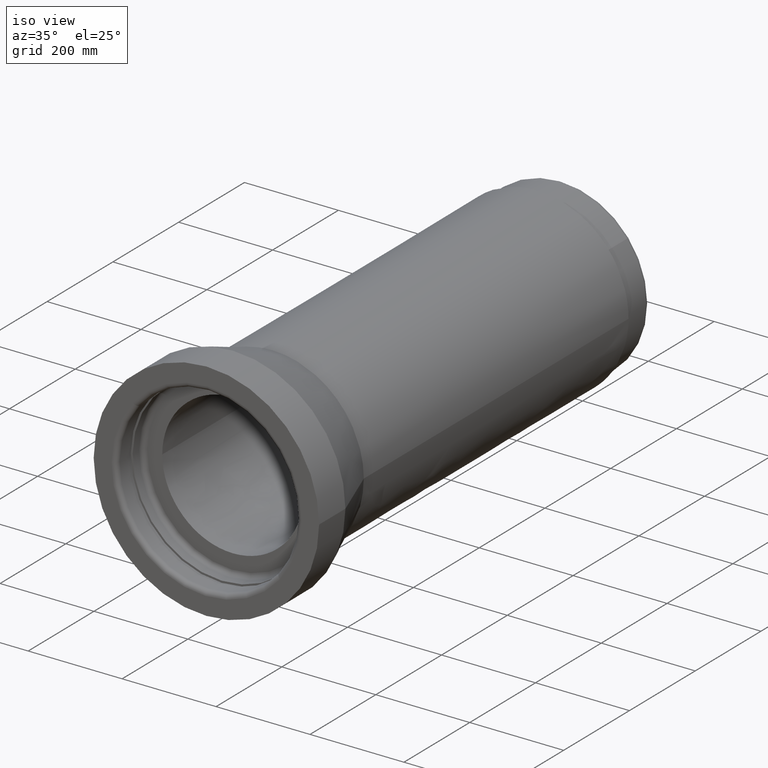
[diagram: clean part render]
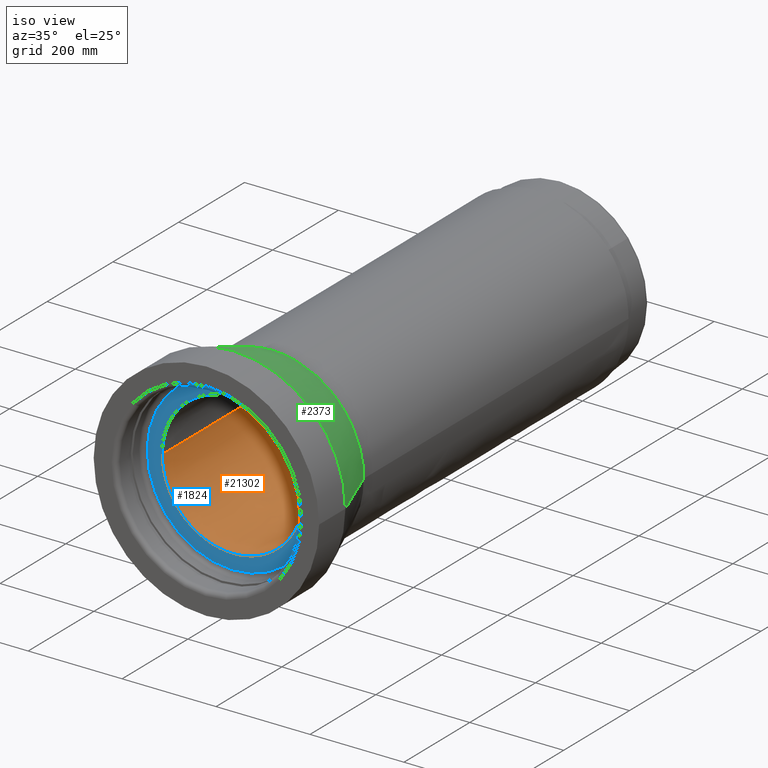
[diagram: same view with three faces highlighted in distinct colors, each labeled with its STEP entity id]
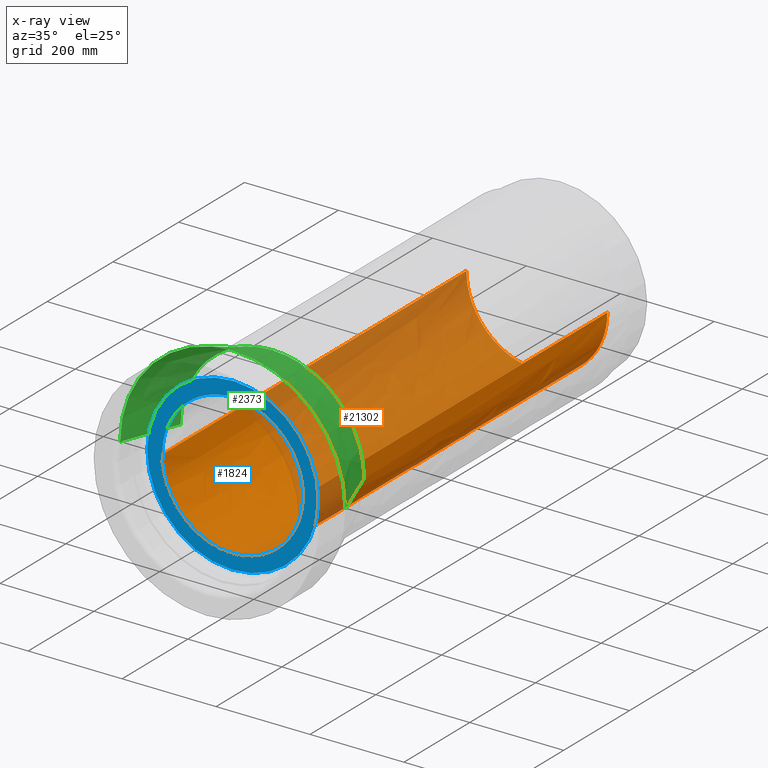
[diagram: x-ray of the same camera — body ghosted, the three highlighted faces saturated]
A machine part, iso view with three faces highlighted in distinct colors.
The next image is the same camera in x-ray (body ghosted, the three faces saturated) — at least one of them is partly hidden behind the body in this view.
Their STEP definitions:

[orange] entity #21302 — the highlighted face is a freeform B-spline surface patch.
#13 = DIRECTION ( 'NONE',  ( 0.0000000000000000000, 0.0000000000000000000, 1.000000000000000000 ) ) ;
#95 = CARTESIAN_POINT ( 'NONE',  ( 0.0000000000000000000, 0.0000000000000000000, 925.0000000000000000 ) ) ;
#132 = VERTEX_POINT ( 'NONE', #3839 ) ;
#265 = DIRECTION ( 'NONE',  ( 1.000000000000000000, 0.0000000000000000000, 0.0000000000000000000 ) ) ;
#444 = CARTESIAN_POINT ( 'NONE',  ( 143.9186689338455380, 42.27785155740733813, 0.0000000000000000000 ) ) ;
#458 = DIRECTION ( 'NONE',  ( 0.0000000000000000000, 0.0000000000000000000, 1.000000000000000000 ) ) ;
#498 = CARTESIAN_POINT ( 'NONE',  ( 39.78134760000010317, -149.9999999999998863, 925.0000000000000000 ) ) ;
#613 = CARTESIAN_POINT ( 'NONE',  ( 149.5679903781081634, -11.88338070924674383, 925.0000000000000000 ) ) ;
#681 = CIRCLE ( 'NONE', #16113, 150.0000000000000284 ) ;
#733 = CARTESIAN_POINT ( 'NONE',  ( -150.0000000000000000, -1.332267629550188101E-13, 925.0000000000000000 ) ) ;
#960 = AXIS2_PLACEMENT_3D ( 'NONE', #16442, #3339, #1811 ) ;
#961 = CARTESIAN_POINT ( 'NONE',  ( -149.9999999999999432, 39.78134759999987580, 616.6666666666667425 ) ) ;
#1012 = CIRCLE ( 'NONE', #4383, 150.0000000000000284 ) ;
#1075 = CARTESIAN_POINT ( 'NONE',  ( 144.0987270862370622, 52.83484027567154584, 0.0000000000000000000 ) ) ;
#1183 = CARTESIAN_POINT ( 'NONE',  ( 39.78134759999996106, 149.9999999999999716, 0.0000000000000000000 ) ) ;
#1230 = EDGE_CURVE ( 'NONE', #6222, #16003, #12530, .T. ) ;
#1295 = CARTESIAN_POINT ( 'NONE',  ( 149.9999999999999716, 1.989067380000117957, 0.0000000000000000000 ) ) ;
#1336 = CIRCLE ( 'NONE', #13394, 150.0000000000000284 ) ;
#1338 = DIRECTION ( 'NONE',  ( 1.000000000000000000, 0.0000000000000000000, 0.0000000000000000000 ) ) ;
#1368 = EDGE_CURVE ( 'NONE', #2273, #132, #10248, .T. ) ;
#1389 = AXIS2_PLACEMENT_3D ( 'NONE', #3207, #14173, #14416 ) ;
#1415 = CARTESIAN_POINT ( 'NONE',  ( 144.0987270862370622, 52.83484027567155294, 616.6666666666667425 ) ) ;
#1469 = ORIENTED_EDGE ( 'NONE', *, *, #22745, .T. ) ;
#1676 = CARTESIAN_POINT ( 'NONE',  ( 0.0000000000000000000, 0.0000000000000000000, 0.0000000000000000000 ) ) ;
#1726 = DIRECTION ( 'NONE',  ( 1.000000000000000000, 0.0000000000000000000, 0.0000000000000000000 ) ) ;
#1811 = DIRECTION ( 'NONE',  ( 1.000000000000000000, 0.0000000000000000000, 0.0000000000000000000 ) ) ;
#1820 = DIRECTION ( 'NONE',  ( 1.000000000000000000, 0.0000000000000000000, 0.0000000000000000000 ) ) ;
#1889 = ORIENTED_EDGE ( 'NONE', *, *, #11147, .F. ) ;
#1924 = CARTESIAN_POINT ( 'NONE',  ( 0.0000000000000000000, 0.0000000000000000000, 0.0000000000000000000 ) ) ;
#2102 = CARTESIAN_POINT ( 'NONE',  ( -1.665334536937734811E-13, 150.0000000000000284, 925.0000000000000000 ) ) ;
#2218 = DIRECTION ( 'NONE',  ( 1.000000000000000000, 0.0000000000000000000, 0.0000000000000000000 ) ) ;
#2251 = CARTESIAN_POINT ( 'NONE',  ( 144.0987270862369769, -52.83484027567126162, 308.3333333333333712 ) ) ;
#2273 = VERTEX_POINT ( 'NONE', #5145 ) ;
#2325 = CARTESIAN_POINT ( 'NONE',  ( 150.0000000000000284, 1.148570609678084874E-13, 925.0000000000000000 ) ) ;
#2345 = VERTEX_POINT ( 'NONE', #17775 ) ;
#2366 = CARTESIAN_POINT ( 'NONE',  ( 149.9209783891533903, -5.959070446626277828, 925.0000000000000000 ) ) ;
#2452 = CARTESIAN_POINT ( 'NONE',  ( 150.0000000000000284, 0.0000000000000000000, 0.0000000000000000000 ) ) ;
#2463 = CIRCLE ( 'NONE', #12200, 150.0000000000000284 ) ;
#2482 = CARTESIAN_POINT ( 'NONE',  ( 149.9209783891533903, -5.959070446626277828, 0.0000000000000000000 ) ) ;
#2602 = CARTESIAN_POINT ( 'NONE',  ( 77.93635652528307389, -134.1956778306810918, 0.0000000000000000000 ) ) ;
#2658 = DIRECTION ( 'NONE',  ( 1.000000000000000000, 0.0000000000000000000, 0.0000000000000000000 ) ) ;
#2686 = CARTESIAN_POINT ( 'NONE',  ( 0.0000000000000000000, 150.0000000000000284, 2.775557561562891351E-14 ) ) ;
#2697 = EDGE_CURVE ( 'NONE', #5702, #17214, #11767, .T. ) ;
#2715 = CARTESIAN_POINT ( 'NONE',  ( -77.93635652528300284, 134.1956778306812623, 308.3333333333333712 ) ) ;
#2830 = CARTESIAN_POINT ( 'NONE',  ( 144.0987270862370622, 52.83484027567154584, 925.0000000000000000 ) ) ;
#2940 = CARTESIAN_POINT ( 'NONE',  ( -77.93635652528300284, 134.1956778306812623, 616.6666666666667425 ) ) ;
#3056 = CARTESIAN_POINT ( 'NONE',  ( -134.1956778306811771, -77.93635652528300284, 616.6666666666667425 ) ) ;
#3178 = CARTESIAN_POINT ( 'NONE',  ( -134.1956778306812907, 77.93635652528286073, 0.0000000000000000000 ) ) ;
#3207 = CARTESIAN_POINT ( 'NONE',  ( 0.0000000000000000000, 0.0000000000000000000, 925.0000000000000000 ) ) ;
#3225 = ORIENTED_EDGE ( 'NONE', *, *, #15384, .F. ) ;
#3339 = DIRECTION ( 'NONE',  ( 0.0000000000000000000, 0.0000000000000000000, 1.000000000000000000 ) ) ;
#3460 = DIRECTION ( 'NONE',  ( 1.000000000000000000, 0.0000000000000000000, 0.0000000000000000000 ) ) ;
#3465 = CARTESIAN_POINT ( 'NONE',  ( 0.0000000000000000000, 0.0000000000000000000, 925.0000000000000000 ) ) ;
#3491 = AXIS2_PLACEMENT_3D ( 'NONE', #20939, #4758, #8285 ) ;
#3839 = CARTESIAN_POINT ( 'NONE',  ( -143.9186689360475100, 42.27785154991161676, 5.551115123125782702E-14 ) ) ;
#4004 = CIRCLE ( 'NONE', #1389, 150.0000000000000284 ) ;
#4010 = ORIENTED_EDGE ( 'NONE', *, *, #8566, .T. ) ;
#4030 = CARTESIAN_POINT ( 'NONE',  ( 148.9831560100520846, -17.77069737734958466, 0.0000000000000000000 ) ) ;
#4144 = CARTESIAN_POINT ( 'NONE',  ( 128.5697457001414250, -83.56228865582255594, 308.3333333333333712 ) ) ;
#4228 = DIRECTION ( 'NONE',  ( 0.0000000000000000000, 0.0000000000000000000, 1.000000000000000000 ) ) ;
#4260 = CARTESIAN_POINT ( 'NONE',  ( -150.0000000000000000, -3.244851242983822784E-14, 5.551115123125782702E-14 ) ) ;
#4374 = CARTESIAN_POINT ( 'NONE',  ( 71.87091120869510519, 131.6608222746306467, 925.0000000000000000 ) ) ;
#4375 = CARTESIAN_POINT ( 'NONE',  ( 128.5697457001414250, -83.56228865582255594, 925.0000000000000000 ) ) ;
#4383 = AXIS2_PLACEMENT_3D ( 'NONE', #19009, #13, #17934 ) ;
#4488 = CARTESIAN_POINT ( 'NONE',  ( 149.9209783891533903, -5.959070446626277828, 616.6666666666667425 ) ) ;
#4510 = VERTEX_POINT ( 'NONE', #11266 ) ;
#4566 = EDGE_CURVE ( 'NONE', #19824, #12759, #17822, .T. ) ;
#4606 = CARTESIAN_POINT ( 'NONE',  ( -77.93635652528283231, -134.1956778306812623, 0.0000000000000000000 ) ) ;
#4718 = CARTESIAN_POINT ( 'NONE',  ( 39.78134759999996106, 149.9999999999999716, 616.6666666666667425 ) ) ;
#4722 = AXIS2_PLACEMENT_3D ( 'NONE', #20574, #11460, #13235 ) ;
#4758 = DIRECTION ( 'NONE',  ( 0.0000000000000000000, 0.0000000000000000000, 1.000000000000000000 ) ) ;
#4829 = CARTESIAN_POINT ( 'NONE',  ( 144.0987270862370622, 52.83484027567155294, 308.3333333333333712 ) ) ;
#4944 = CARTESIAN_POINT ( 'NONE',  ( 149.9999999999999716, 1.320558246087344401E-13, 0.0000000000000000000 ) ) ;
#4999 = ORIENTED_EDGE ( 'NONE', *, *, #22584, .T. ) ;
#5019 = VERTEX_POINT ( 'NONE', #5602 ) ;
#5058 = CARTESIAN_POINT ( 'NONE',  ( -149.9999999999998863, -39.78134760000004633, 925.0000000000000000 ) ) ;
#5079 = AXIS2_PLACEMENT_3D ( 'NONE', #1676, #5210, #14297 ) ;
#5084 = CARTESIAN_POINT ( 'NONE',  ( 0.0000000000000000000, 0.0000000000000000000, 0.0000000000000000000 ) ) ;
#5134 = ORIENTED_EDGE ( 'NONE', *, *, #16658, .T. ) ;
#5145 = CARTESIAN_POINT ( 'NONE',  ( -131.6608222709535312, 71.87091121543129191, 5.551115123125782702E-14 ) ) ;
#5210 = DIRECTION ( 'NONE',  ( 0.0000000000000000000, 0.0000000000000000000, 1.000000000000000000 ) ) ;
#5286 = EDGE_CURVE ( 'NONE', #16003, #19824, #14117, .T. ) ;
#5422 = CARTESIAN_POINT ( 'NONE',  ( -143.9186689360165303, 42.27785155001699735, 925.0000000000000000 ) ) ;
#5564 = AXIS2_PLACEMENT_3D ( 'NONE', #9511, #4228, #2218 ) ;
#5602 = CARTESIAN_POINT ( 'NONE',  ( -150.0000000000000000, -3.244851242983822784E-14, 5.551115123125782702E-14 ) ) ;
#5695 = DIRECTION ( 'NONE',  ( 1.000000000000000000, 0.0000000000000000000, 0.0000000000000000000 ) ) ;
#5702 = VERTEX_POINT ( 'NONE', #14987 ) ;
#5888 = AXIS2_PLACEMENT_3D ( 'NONE', #22831, #10274, #1338 ) ;
#5913 = CARTESIAN_POINT ( 'NONE',  ( 149.9999999999999716, -1.989067379999889695, 0.0000000000000000000 ) ) ;
#6150 = CARTESIAN_POINT ( 'NONE',  ( 148.9831560100520846, -17.77069737734958466, 616.6666666666667425 ) ) ;
#6172 = ORIENTED_EDGE ( 'NONE', *, *, #1368, .F. ) ;
#6222 = VERTEX_POINT ( 'NONE', #14488 ) ;
#6320 = DIRECTION ( 'NONE',  ( 0.0000000000000000000, 0.0000000000000000000, 1.000000000000000000 ) ) ;
#6343 = CARTESIAN_POINT ( 'NONE',  ( 0.0000000000000000000, 0.0000000000000000000, 0.0000000000000000000 ) ) ;
#6381 = CARTESIAN_POINT ( 'NONE',  ( -77.93635652528283231, -134.1956778306812623, 308.3333333333333712 ) ) ;
#6468 = AXIS2_PLACEMENT_3D ( 'NONE', #1924, #16324, #5695 ) ;
#6494 = CARTESIAN_POINT ( 'NONE',  ( 77.93635652528294600, 134.1956778306813192, 308.3333333333333712 ) ) ;
#6528 = AXIS2_PLACEMENT_3D ( 'NONE', #20501, #18260, #7511 ) ;
#6607 = CARTESIAN_POINT ( 'NONE',  ( -77.93635652528283231, -134.1956778306812623, 616.6666666666667425 ) ) ;
#6721 = CARTESIAN_POINT ( 'NONE',  ( 149.5679903781081350, 11.88338070924697121, 308.3333333333333712 ) ) ;
#6831 = CARTESIAN_POINT ( 'NONE',  ( 128.5697457001414818, 83.56228865582281173, 925.0000000000000000 ) ) ;
#6836 = EDGE_LOOP ( 'NONE', ( #10240, #15073, #14952, #6172, #1889, #10024, #19164, #22163, #22677, #17611, #3225, #19985, #20177, #19548, #17100, #19333, #5134, #1469, #18937, #8264, #4010, #4999, #11908, #9524, #12327, #22654 ) ) ;
#7227 = CARTESIAN_POINT ( 'NONE',  ( 0.0000000000000000000, 0.0000000000000000000, 925.0000000000000000 ) ) ;
#7263 = CARTESIAN_POINT ( 'NONE',  ( 0.0000000000000000000, 0.0000000000000000000, 925.0000000000000000 ) ) ;
#7511 = DIRECTION ( 'NONE',  ( 1.000000000000000000, 0.0000000000000000000, 0.0000000000000000000 ) ) ;
#7553 = CARTESIAN_POINT ( 'NONE',  ( 149.9999999999999716, 1.320558246087344401E-13, 925.0000000000000000 ) ) ;
#7590 = CARTESIAN_POINT ( 'NONE',  ( 106.0660171779820331, 106.0660171779822463, 925.0000000000000000 ) ) ;
#7668 = CARTESIAN_POINT ( 'NONE',  ( 149.9999999999999716, 1.318389841742373392E-13, 308.3333333333333712 ) ) ;
#7676 = VERTEX_POINT ( 'NONE', #7590 ) ;
#7757 = CARTESIAN_POINT ( 'NONE',  ( 0.0000000000000000000, 0.0000000000000000000, 0.0000000000000000000 ) ) ;
#7771 = EDGE_CURVE ( 'NONE', #22336, #2345, #12240, .T. ) ;
#7789 = CARTESIAN_POINT ( 'NONE',  ( 144.0987270862369769, -52.83484027567126162, 0.0000000000000000000 ) ) ;
#8018 = CARTESIAN_POINT ( 'NONE',  ( -149.9999999999999147, -8.326672684688674053E-14, 616.6666666666667425 ) ) ;
#8128 = CARTESIAN_POINT ( 'NONE',  ( -39.78134760000001791, 149.9999999999999716, 0.0000000000000000000 ) ) ;
#8243 = CARTESIAN_POINT ( 'NONE',  ( 149.5679903781081634, 11.88338070924697121, 616.6666666666667425 ) ) ;
#8264 = ORIENTED_EDGE ( 'NONE', *, *, #22299, .T. ) ;
#8285 = DIRECTION ( 'NONE',  ( 1.000000000000000000, 0.0000000000000000000, 0.0000000000000000000 ) ) ;
#8356 = CARTESIAN_POINT ( 'NONE',  ( -149.9999999999998863, -39.78134760000004633, 308.3333333333333712 ) ) ;
#8429 = EDGE_CURVE ( 'NONE', #12150, #22336, #2463, .T. ) ;
#8472 = CARTESIAN_POINT ( 'NONE',  ( 149.9999999999999716, 1.320558246087344401E-13, 925.0000000000000000 ) ) ;
#8566 = EDGE_CURVE ( 'NONE', #18826, #17124, #14894, .T. ) ;
#8588 = CARTESIAN_POINT ( 'NONE',  ( -150.0000000000000000, 39.78134759999987580, 308.3333333333333712 ) ) ;
#8695 = CARTESIAN_POINT ( 'NONE',  ( -106.0660171779822178, 106.0660171779820615, 925.0000000000000000 ) ) ;
#8720 = VERTEX_POINT ( 'NONE', #15341 ) ;
#8794 = DIRECTION ( 'NONE',  ( 1.000000000000000000, 0.0000000000000000000, 0.0000000000000000000 ) ) ;
#8870 = DIRECTION ( 'NONE',  ( 1.000000000000000000, 0.0000000000000000000, 0.0000000000000000000 ) ) ;
#8877 = DIRECTION ( 'NONE',  ( 0.0000000000000000000, 0.0000000000000000000, 1.000000000000000000 ) ) ;
#8970 = CARTESIAN_POINT ( 'NONE',  ( 143.9186727430339090, 42.27785267636646438, 925.0000000000000000 ) ) ;
#8996 = DIRECTION ( 'NONE',  ( 1.000000000000000000, 0.0000000000000000000, 0.0000000000000000000 ) ) ;
#9072 = CARTESIAN_POINT ( 'NONE',  ( 42.27785155107749659, 143.9186689357050000, 925.0000000000000000 ) ) ;
#9309 = CARTESIAN_POINT ( 'NONE',  ( -131.6608222710112557, 71.87091121532537841, 925.0000000000000000 ) ) ;
#9426 = CARTESIAN_POINT ( 'NONE',  ( 77.93635652528307389, -134.1956778306810918, 925.0000000000000000 ) ) ;
#9511 = CARTESIAN_POINT ( 'NONE',  ( 0.0000000000000000000, 0.0000000000000000000, 0.0000000000000000000 ) ) ;
#9524 = ORIENTED_EDGE ( 'NONE', *, *, #5286, .T. ) ;
#9544 = CARTESIAN_POINT ( 'NONE',  ( -39.78134759999981895, -149.9999999999999716, 308.3333333333333712 ) ) ;
#9603 = AXIS2_PLACEMENT_3D ( 'NONE', #6343, #458, #18740 ) ;
#9662 = CARTESIAN_POINT ( 'NONE',  ( 39.78134760000010317, -149.9999999999998863, 616.6666666666667425 ) ) ;
#9665 = CARTESIAN_POINT ( 'NONE',  ( 131.6608222701226225, 71.87091121695331708, 925.0000000000000000 ) ) ;
#9743 = EDGE_CURVE ( 'NONE', #20015, #22771, #1336, .T. ) ;
#9779 = CARTESIAN_POINT ( 'NONE',  ( -39.78134759999981895, -149.9999999999999432, 925.0000000000000000 ) ) ;
#9832 = DIRECTION ( 'NONE',  ( 0.0000000000000000000, 0.0000000000000000000, 1.000000000000000000 ) ) ;
#9889 = CARTESIAN_POINT ( 'NONE',  ( 77.93635652528294600, 134.1956778306813192, 925.0000000000000000 ) ) ;
#9938 = VERTEX_POINT ( 'NONE', #4374 ) ;
#9949 = CARTESIAN_POINT ( 'NONE',  ( 0.0000000000000000000, 0.0000000000000000000, 0.0000000000000000000 ) ) ;
#10004 = CARTESIAN_POINT ( 'NONE',  ( -149.9999999999998863, -39.78134760000004633, 616.6666666666667425 ) ) ;
#10024 = ORIENTED_EDGE ( 'NONE', *, *, #7771, .F. ) ;
#10058 = CARTESIAN_POINT ( 'NONE',  ( 0.0000000000000000000, 0.0000000000000000000, 925.0000000000000000 ) ) ;
#10116 = CARTESIAN_POINT ( 'NONE',  ( -149.9999999999999432, 39.78134759999987580, 925.0000000000000000 ) ) ;
#10125 = AXIS2_PLACEMENT_3D ( 'NONE', #7757, #16504, #21708 ) ;
#10181 = DIRECTION ( 'NONE',  ( 1.000000000000000000, 0.0000000000000000000, 0.0000000000000000000 ) ) ;
#10233 = CARTESIAN_POINT ( 'NONE',  ( 149.9999999999999716, 1.989067380000117957, 616.6666666666667425 ) ) ;
#10240 = ORIENTED_EDGE ( 'NONE', *, *, #14333, .T. ) ;
#10248 = CIRCLE ( 'NONE', #17441, 150.0000000000000284 ) ;
#10274 = DIRECTION ( 'NONE',  ( 0.0000000000000000000, 0.0000000000000000000, 1.000000000000000000 ) ) ;
#10348 = CARTESIAN_POINT ( 'NONE',  ( -134.1956778306811771, -77.93635652528300284, 0.0000000000000000000 ) ) ;
#10516 = CARTESIAN_POINT ( 'NONE',  ( 0.0000000000000000000, 0.0000000000000000000, 925.0000000000000000 ) ) ;
#10802 = AXIS2_PLACEMENT_3D ( 'NONE', #7227, #14432, #8870 ) ;
#11147 = EDGE_CURVE ( 'NONE', #2345, #2273, #21303, .T. ) ;
#11198 = CIRCLE ( 'NONE', #11614, 150.0000000000000284 ) ;
#11199 = CARTESIAN_POINT ( 'NONE',  ( 144.0987270862369769, -52.83484027567126162, 925.0000000000000000 ) ) ;
#11266 = CARTESIAN_POINT ( 'NONE',  ( 71.87091120880187134, 131.6608222745723538, 0.0000000000000000000 ) ) ;
#11314 = CARTESIAN_POINT ( 'NONE',  ( 77.93635652528307389, -134.1956778306810918, 308.3333333333333712 ) ) ;
#11435 = CARTESIAN_POINT ( 'NONE',  ( 149.9999999999999716, 1.320558246087344401E-13, 616.6666666666667425 ) ) ;
#11460 = DIRECTION ( 'NONE',  ( 0.0000000000000000000, 0.0000000000000000000, 1.000000000000000000 ) ) ;
#11515 = CARTESIAN_POINT ( 'NONE',  ( 149.9999999999999716, 1.318389841742373392E-13, 308.3333333333333712 ) ) ;
#11553 = CARTESIAN_POINT ( 'NONE',  ( 128.5697457001414250, -83.56228865582255594, 0.0000000000000000000 ) ) ;
#11573 = AXIS2_PLACEMENT_3D ( 'NONE', #10058, #9832, #2658 ) ;
#11576 = EDGE_CURVE ( 'NONE', #8720, #20015, #11921, .T. ) ;
#11604 = EDGE_CURVE ( 'NONE', #4510, #17747, #19422, .T. ) ;
#11614 = AXIS2_PLACEMENT_3D ( 'NONE', #95, #16251, #8794 ) ;
#11745 = CARTESIAN_POINT ( 'NONE',  ( 149.9999999999999716, 1.320558246087344401E-13, 616.6666666666667425 ) ) ;
#11767 = CIRCLE ( 'NONE', #3491, 150.0000000000000284 ) ;
#11785 = CARTESIAN_POINT ( 'NONE',  ( 149.9209783891533618, 5.959070446626506978, 616.6666666666667425 ) ) ;
#11892 = EDGE_CURVE ( 'NONE', #12759, #14149, #20604, .T. ) ;
#11902 = CARTESIAN_POINT ( 'NONE',  ( -77.93635652528300284, 134.1956778306812623, 925.0000000000000000 ) ) ;
#11908 = ORIENTED_EDGE ( 'NONE', *, *, #1230, .T. ) ;
#11921 = B_SPLINE_CURVE_WITH_KNOTS ( 'NONE', 3,
 ( #2325, #11745, #11515, #15078 ),
 .UNSPECIFIED., .F., .F.,
 ( 4, 4 ),
 ( 0.0000000000000000000, 1.000000000000000000 ),
 .UNSPECIFIED. ) ;
#11953 = DIRECTION ( 'NONE',  ( 1.000000000000000000, 0.0000000000000000000, 0.0000000000000000000 ) ) ;
#12014 = CARTESIAN_POINT ( 'NONE',  ( 148.9831560100520846, 17.77069737734988308, 616.6666666666667425 ) ) ;
#12049 = CIRCLE ( 'NONE', #18527, 150.0000000000000284 ) ;
#12131 = CARTESIAN_POINT ( 'NONE',  ( 77.93635652528294600, 134.1956778306813192, 0.0000000000000000000 ) ) ;
#12150 = VERTEX_POINT ( 'NONE', #14745 ) ;
#12200 = AXIS2_PLACEMENT_3D ( 'NONE', #20949, #6320, #11953 ) ;
#12240 = CIRCLE ( 'NONE', #5079, 150.0000000000000284 ) ;
#12252 = CARTESIAN_POINT ( 'NONE',  ( -77.93635652528283231, -134.1956778306812623, 925.0000000000000000 ) ) ;
#12277 = DIRECTION ( 'NONE',  ( 0.0000000000000000000, 0.0000000000000000000, 1.000000000000000000 ) ) ;
#12327 = ORIENTED_EDGE ( 'NONE', *, *, #4566, .T. ) ;
#12414 = CARTESIAN_POINT ( 'NONE',  ( 0.0000000000000000000, 0.0000000000000000000, 925.0000000000000000 ) ) ;
#12489 = EDGE_CURVE ( 'NONE', #22347, #12150, #1012, .T. ) ;
#12530 = CIRCLE ( 'NONE', #21598, 150.0000000000000284 ) ;
#12679 = VERTEX_POINT ( 'NONE', #8970 ) ;
#12759 = VERTEX_POINT ( 'NONE', #9309 ) ;
#12947 = CARTESIAN_POINT ( 'NONE',  ( 0.0000000000000000000, 0.0000000000000000000, 925.0000000000000000 ) ) ;
#12980 = CARTESIAN_POINT ( 'NONE',  ( 149.9999999999999716, -1.989067379999889695, 308.3333333333333712 ) ) ;
#13094 = CARTESIAN_POINT ( 'NONE',  ( 128.5697457001414250, -83.56228865582255594, 616.6666666666667425 ) ) ;
#13235 = DIRECTION ( 'NONE',  ( 1.000000000000000000, 0.0000000000000000000, 0.0000000000000000000 ) ) ;
#13329 = CARTESIAN_POINT ( 'NONE',  ( 149.9999999999999716, 1.320558246087344401E-13, 0.0000000000000000000 ) ) ;
#13373 = AXIS2_PLACEMENT_3D ( 'NONE', #12414, #19633, #3460 ) ;
#13394 = AXIS2_PLACEMENT_3D ( 'NONE', #5084, #12277, #265 ) ;
#13444 = CARTESIAN_POINT ( 'NONE',  ( -149.9999999999999432, -8.326672684688674053E-14, 308.3333333333333712 ) ) ;
#13560 = AXIS2_PLACEMENT_3D ( 'NONE', #3465, #20104, #1820 ) ;
#13562 = CARTESIAN_POINT ( 'NONE',  ( 149.5679903781081634, 11.88338070924697121, 0.0000000000000000000 ) ) ;
#13683 = CARTESIAN_POINT ( 'NONE',  ( 128.5697457001414818, 83.56228865582281173, 616.6666666666667425 ) ) ;
#13796 = CARTESIAN_POINT ( 'NONE',  ( -149.9999999999999432, 39.78134759999987580, 0.0000000000000000000 ) ) ;
#13802 = VERTEX_POINT ( 'NONE', #9665 ) ;
#13915 = CARTESIAN_POINT ( 'NONE',  ( 148.9831560100520846, 17.77069737734988308, 0.0000000000000000000 ) ) ;
#14027 = CARTESIAN_POINT ( 'NONE',  ( 148.9831560100520846, 17.77069737734988308, 925.0000000000000000 ) ) ;
#14117 = CIRCLE ( 'NONE', #13373, 150.0000000000000284 ) ;
#14149 = VERTEX_POINT ( 'NONE', #5422 ) ;
#14173 = DIRECTION ( 'NONE',  ( 0.0000000000000000000, 0.0000000000000000000, 1.000000000000000000 ) ) ;
#14297 = DIRECTION ( 'NONE',  ( 1.000000000000000000, 0.0000000000000000000, 0.0000000000000000000 ) ) ;
#14333 = EDGE_CURVE ( 'NONE', #14149, #21295, #4004, .T. ) ;
#14416 = DIRECTION ( 'NONE',  ( 1.000000000000000000, 0.0000000000000000000, 0.0000000000000000000 ) ) ;
#14432 = DIRECTION ( 'NONE',  ( 0.0000000000000000000, 0.0000000000000000000, 1.000000000000000000 ) ) ;
#14488 = CARTESIAN_POINT ( 'NONE',  ( -42.27785155492316704, 143.9186689345752939, 925.0000000000000000 ) ) ;
#14745 = CARTESIAN_POINT ( 'NONE',  ( -42.27785155480739832, 143.9186689346093146, 2.775557561562891351E-14 ) ) ;
#14760 = CARTESIAN_POINT ( 'NONE',  ( 149.5679903781081350, -11.88338070924674383, 308.3333333333333712 ) ) ;
#14852 = B_SPLINE_SURFACE_WITH_KNOTS ( 'NONE', 3, 3, ( 
 ( #7553, #11435, #7668, #13329 ),
 ( #14998, #18778, #12980, #5913 ),
 ( #2366, #4488, #18660, #2482 ),
 ( #613, #17004, #14760, #15119 ),
 ( #22209, #6150, #20196, #4030 ),
 ( #11199, #18424, #2251, #7789 ),
 ( #4375, #13094, #4144, #11553 ),
 ( #9426, #16650, #11314, #2602 ),
 ( #498, #9662, #14875, #22090 ),
 ( #9779, #18543, #9544, #16888 ),
 ( #12252, #6607, #6381, #4606 ),
 ( #17230, #3056, #19118, #10348 ),
 ( #5058, #10004, #8356, #22786 ),
 ( #10116, #961, #8588, #13796 ),
 ( #20782, #15808, #15465, #3178 ),
 ( #11902, #2940, #2715, #21014 ),
 ( #17342, #17118, #23016, #8128 ),
 ( #15347, #4718, #22671, #1183 ),
 ( #9889, #15581, #6494, #12131 ),
 ( #6831, #13683, #19348, #17576 ),
 ( #2830, #1415, #4829, #1075 ),
 ( #14027, #12014, #22555, #13915 ),
 ( #19231, #8243, #6721, #13562 ),
 ( #21239, #11785, #20898, #15696 ),
 ( #19000, #10233, #17457, #1295 ),
 ( #8472, #22903, #21127, #4944 ) ),
 .UNSPECIFIED., .T., .F., .F.,
 ( 4, 1, 1, 1, 1, 2, 2, 2, 2, 2, 2, 2, 1, 1, 1, 1, 4 ),
 ( 4, 4 ),
 ( 0.0000000000000000000, 0.006250000000000088818, 0.01249999999999995559, 0.01875000000000004441, 0.02499999999999991118, 0.1250000000000000000, 0.2500000000000000000, 0.3750000000000000000, 0.5000000000000000000, 0.6250000000000000000, 0.7500000000000000000, 0.8750000000000000000, 0.9749999999999999778, 0.9812499999999999556, 0.9875000000000000444, 0.9937500000000000222, 1.000000000000000000 ),
 ( 0.0000000000000000000, 1.000000000000000000 ),
 .UNSPECIFIED. ) ;
#14875 = CARTESIAN_POINT ( 'NONE',  ( 39.78134760000010317, -149.9999999999998579, 308.3333333333333712 ) ) ;
#14894 = CIRCLE ( 'NONE', #4722, 150.0000000000000284 ) ;
#14952 = ORIENTED_EDGE ( 'NONE', *, *, #17240, .F. ) ;
#14987 = CARTESIAN_POINT ( 'NONE',  ( 131.6608222700711224, 71.87091121704769137, 0.0000000000000000000 ) ) ;
#14998 = CARTESIAN_POINT ( 'NONE',  ( 149.9999999999999716, -1.989067379999889695, 925.0000000000000000 ) ) ;
#15073 = ORIENTED_EDGE ( 'NONE', *, *, #21269, .T. ) ;
#15078 = CARTESIAN_POINT ( 'NONE',  ( 150.0000000000000284, 0.0000000000000000000, 0.0000000000000000000 ) ) ;
#15119 = CARTESIAN_POINT ( 'NONE',  ( 149.5679903781081634, -11.88338070924674383, 0.0000000000000000000 ) ) ;
#15341 = CARTESIAN_POINT ( 'NONE',  ( 150.0000000000000284, 1.148570609678084874E-13, 925.0000000000000000 ) ) ;
#15347 = CARTESIAN_POINT ( 'NONE',  ( 39.78134759999996106, 149.9999999999999716, 925.0000000000000000 ) ) ;
#15366 = CIRCLE ( 'NONE', #5564, 150.0000000000000284 ) ;
#15384 = EDGE_CURVE ( 'NONE', #17214, #4510, #681, .T. ) ;
#15465 = CARTESIAN_POINT ( 'NONE',  ( -134.1956778306812907, 77.93635652528286073, 308.3333333333333712 ) ) ;
#15581 = CARTESIAN_POINT ( 'NONE',  ( 77.93635652528294600, 134.1956778306813192, 616.6666666666667425 ) ) ;
#15696 = CARTESIAN_POINT ( 'NONE',  ( 149.9209783891533618, 5.959070446626506978, 0.0000000000000000000 ) ) ;
#15808 = CARTESIAN_POINT ( 'NONE',  ( -134.1956778306812907, 77.93635652528286073, 616.6666666666667425 ) ) ;
#15881 = B_SPLINE_CURVE_WITH_KNOTS ( 'NONE', 3,
 ( #16534, #8018, #13444, #4260 ),
 .UNSPECIFIED., .F., .F.,
 ( 4, 4 ),
 ( 0.0000000000000000000, 1.000000000000000000 ),
 .UNSPECIFIED. ) ;
#16003 = VERTEX_POINT ( 'NONE', #18694 ) ;
#16099 = DIRECTION ( 'NONE',  ( 0.0000000000000000000, 0.0000000000000000000, 1.000000000000000000 ) ) ;
#16113 = AXIS2_PLACEMENT_3D ( 'NONE', #9949, #20961, #10181 ) ;
#16251 = DIRECTION ( 'NONE',  ( 0.0000000000000000000, 0.0000000000000000000, 1.000000000000000000 ) ) ;
#16324 = DIRECTION ( 'NONE',  ( 0.0000000000000000000, 0.0000000000000000000, 1.000000000000000000 ) ) ;
#16442 = CARTESIAN_POINT ( 'NONE',  ( 0.0000000000000000000, 0.0000000000000000000, 0.0000000000000000000 ) ) ;
#16504 = DIRECTION ( 'NONE',  ( 0.0000000000000000000, 0.0000000000000000000, 1.000000000000000000 ) ) ;
#16534 = CARTESIAN_POINT ( 'NONE',  ( -150.0000000000000000, -1.332267629550188101E-13, 925.0000000000000000 ) ) ;
#16650 = CARTESIAN_POINT ( 'NONE',  ( 77.93635652528307389, -134.1956778306810918, 616.6666666666667425 ) ) ;
#16658 = EDGE_CURVE ( 'NONE', #12679, #13802, #17995, .T. ) ;
#16888 = CARTESIAN_POINT ( 'NONE',  ( -39.78134759999981895, -149.9999999999999432, 0.0000000000000000000 ) ) ;
#17004 = CARTESIAN_POINT ( 'NONE',  ( 149.5679903781081634, -11.88338070924674383, 616.6666666666667425 ) ) ;
#17100 = ORIENTED_EDGE ( 'NONE', *, *, #11576, .F. ) ;
#17118 = CARTESIAN_POINT ( 'NONE',  ( -39.78134760000001791, 149.9999999999999716, 616.6666666666667425 ) ) ;
#17124 = VERTEX_POINT ( 'NONE', #2102 ) ;
#17214 = VERTEX_POINT ( 'NONE', #21706 ) ;
#17230 = CARTESIAN_POINT ( 'NONE',  ( -134.1956778306811771, -77.93635652528300284, 925.0000000000000000 ) ) ;
#17240 = EDGE_CURVE ( 'NONE', #132, #5019, #15366, .T. ) ;
#17340 = CIRCLE ( 'NONE', #13560, 150.0000000000000284 ) ;
#17342 = CARTESIAN_POINT ( 'NONE',  ( -39.78134760000001791, 149.9999999999999716, 925.0000000000000000 ) ) ;
#17441 = AXIS2_PLACEMENT_3D ( 'NONE', #23298, #8877, #18102 ) ;
#17448 = EDGE_CURVE ( 'NONE', #8720, #12679, #21781, .T. ) ;
#17457 = CARTESIAN_POINT ( 'NONE',  ( 149.9999999999999716, 1.989067380000117957, 308.3333333333333712 ) ) ;
#17576 = CARTESIAN_POINT ( 'NONE',  ( 128.5697457001414818, 83.56228865582281173, 0.0000000000000000000 ) ) ;
#17611 = ORIENTED_EDGE ( 'NONE', *, *, #11604, .F. ) ;
#17747 = VERTEX_POINT ( 'NONE', #19516 ) ;
#17775 = CARTESIAN_POINT ( 'NONE',  ( -106.0660171779821184, 106.0660171779821184, 5.551115123125782702E-14 ) ) ;
#17822 = CIRCLE ( 'NONE', #6528, 150.0000000000000284 ) ;
#17934 = DIRECTION ( 'NONE',  ( 1.000000000000000000, 0.0000000000000000000, 0.0000000000000000000 ) ) ;
#17995 = CIRCLE ( 'NONE', #10802, 150.0000000000000284 ) ;
#18097 = EDGE_CURVE ( 'NONE', #7676, #9938, #11198, .T. ) ;
#18102 = DIRECTION ( 'NONE',  ( 1.000000000000000000, 0.0000000000000000000, 0.0000000000000000000 ) ) ;
#18260 = DIRECTION ( 'NONE',  ( 0.0000000000000000000, 0.0000000000000000000, 1.000000000000000000 ) ) ;
#18273 = DIRECTION ( 'NONE',  ( 1.000000000000000000, 0.0000000000000000000, 0.0000000000000000000 ) ) ;
#18424 = CARTESIAN_POINT ( 'NONE',  ( 144.0987270862369769, -52.83484027567126162, 616.6666666666667425 ) ) ;
#18527 = AXIS2_PLACEMENT_3D ( 'NONE', #12947, #20283, #18273 ) ;
#18543 = CARTESIAN_POINT ( 'NONE',  ( -39.78134759999981895, -149.9999999999999432, 616.6666666666667425 ) ) ;
#18660 = CARTESIAN_POINT ( 'NONE',  ( 149.9209783891533903, -5.959070446626277828, 308.3333333333333712 ) ) ;
#18694 = CARTESIAN_POINT ( 'NONE',  ( -71.87091121821923423, 131.6608222694316055, 925.0000000000000000 ) ) ;
#18740 = DIRECTION ( 'NONE',  ( 1.000000000000000000, 0.0000000000000000000, 0.0000000000000000000 ) ) ;
#18778 = CARTESIAN_POINT ( 'NONE',  ( 149.9999999999999716, -1.989067379999889695, 616.6666666666667425 ) ) ;
#18826 = VERTEX_POINT ( 'NONE', #9072 ) ;
#18860 = CARTESIAN_POINT ( 'NONE',  ( -71.87091121831554119, 131.6608222693789969, 5.551115123125782702E-14 ) ) ;
#18937 = ORIENTED_EDGE ( 'NONE', *, *, #18097, .T. ) ;
#19000 = CARTESIAN_POINT ( 'NONE',  ( 149.9999999999999716, 1.989067380000117957, 925.0000000000000000 ) ) ;
#19009 = CARTESIAN_POINT ( 'NONE',  ( 0.0000000000000000000, 0.0000000000000000000, 0.0000000000000000000 ) ) ;
#19118 = CARTESIAN_POINT ( 'NONE',  ( -134.1956778306811771, -77.93635652528300284, 308.3333333333333712 ) ) ;
#19164 = ORIENTED_EDGE ( 'NONE', *, *, #8429, .F. ) ;
#19229 = CIRCLE ( 'NONE', #6468, 150.0000000000000284 ) ;
#19231 = CARTESIAN_POINT ( 'NONE',  ( 149.5679903781081634, 11.88338070924697121, 925.0000000000000000 ) ) ;
#19333 = ORIENTED_EDGE ( 'NONE', *, *, #17448, .T. ) ;
#19348 = CARTESIAN_POINT ( 'NONE',  ( 128.5697457001414818, 83.56228865582281173, 308.3333333333333712 ) ) ;
#19422 = CIRCLE ( 'NONE', #9603, 150.0000000000000284 ) ;
#19516 = CARTESIAN_POINT ( 'NONE',  ( 42.27785155097210890, 143.9186689357359512, 2.775557561562891351E-14 ) ) ;
#19548 = ORIENTED_EDGE ( 'NONE', *, *, #9743, .F. ) ;
#19633 = DIRECTION ( 'NONE',  ( 0.0000000000000000000, 0.0000000000000000000, 1.000000000000000000 ) ) ;
#19655 = CIRCLE ( 'NONE', #20744, 150.0000000000000284 ) ;
#19785 = DIRECTION ( 'NONE',  ( 0.0000000000000000000, 0.0000000000000000000, 1.000000000000000000 ) ) ;
#19824 = VERTEX_POINT ( 'NONE', #8695 ) ;
#19828 = EDGE_CURVE ( 'NONE', #22771, #5702, #21842, .T. ) ;
#19985 = ORIENTED_EDGE ( 'NONE', *, *, #2697, .F. ) ;
#20015 = VERTEX_POINT ( 'NONE', #2452 ) ;
#20104 = DIRECTION ( 'NONE',  ( 0.0000000000000000000, 0.0000000000000000000, 1.000000000000000000 ) ) ;
#20177 = ORIENTED_EDGE ( 'NONE', *, *, #19828, .F. ) ;
#20196 = CARTESIAN_POINT ( 'NONE',  ( 148.9831560100520846, -17.77069737734958466, 308.3333333333333712 ) ) ;
#20283 = DIRECTION ( 'NONE',  ( 0.0000000000000000000, 0.0000000000000000000, 1.000000000000000000 ) ) ;
#20501 = CARTESIAN_POINT ( 'NONE',  ( 0.0000000000000000000, 0.0000000000000000000, 925.0000000000000000 ) ) ;
#20574 = CARTESIAN_POINT ( 'NONE',  ( 0.0000000000000000000, 0.0000000000000000000, 925.0000000000000000 ) ) ;
#20604 = CIRCLE ( 'NONE', #5888, 150.0000000000000284 ) ;
#20666 = FACE_OUTER_BOUND ( 'NONE', #6836, .T. ) ;
#20744 = AXIS2_PLACEMENT_3D ( 'NONE', #7263, #19785, #1726 ) ;
#20782 = CARTESIAN_POINT ( 'NONE',  ( -134.1956778306812907, 77.93635652528286073, 925.0000000000000000 ) ) ;
#20898 = CARTESIAN_POINT ( 'NONE',  ( 149.9209783891533618, 5.959070446626506978, 308.3333333333333712 ) ) ;
#20939 = CARTESIAN_POINT ( 'NONE',  ( 0.0000000000000000000, 0.0000000000000000000, 0.0000000000000000000 ) ) ;
#20949 = CARTESIAN_POINT ( 'NONE',  ( 0.0000000000000000000, 0.0000000000000000000, 0.0000000000000000000 ) ) ;
#20961 = DIRECTION ( 'NONE',  ( 0.0000000000000000000, 0.0000000000000000000, 1.000000000000000000 ) ) ;
#21014 = CARTESIAN_POINT ( 'NONE',  ( -77.93635652528300284, 134.1956778306812623, 0.0000000000000000000 ) ) ;
#21127 = CARTESIAN_POINT ( 'NONE',  ( 149.9999999999999716, 1.318389841742373392E-13, 308.3333333333333712 ) ) ;
#21239 = CARTESIAN_POINT ( 'NONE',  ( 149.9209783891533618, 5.959070446626506978, 925.0000000000000000 ) ) ;
#21269 = EDGE_CURVE ( 'NONE', #21295, #5019, #15881, .T. ) ;
#21295 = VERTEX_POINT ( 'NONE', #733 ) ;
#21302 = ADVANCED_FACE ( 'NONE', ( #20666 ), #14852, .F. ) ;
#21303 = CIRCLE ( 'NONE', #960, 150.0000000000000284 ) ;
#21598 = AXIS2_PLACEMENT_3D ( 'NONE', #10516, #16099, #8996 ) ;
#21706 = CARTESIAN_POINT ( 'NONE',  ( 106.0660171779821468, 106.0660171779821468, 0.0000000000000000000 ) ) ;
#21708 = DIRECTION ( 'NONE',  ( 1.000000000000000000, 0.0000000000000000000, 0.0000000000000000000 ) ) ;
#21781 = CIRCLE ( 'NONE', #11573, 150.0000000000000284 ) ;
#21842 = CIRCLE ( 'NONE', #10125, 150.0000000000000284 ) ;
#22090 = CARTESIAN_POINT ( 'NONE',  ( 39.78134760000010317, -149.9999999999998863, 0.0000000000000000000 ) ) ;
#22163 = ORIENTED_EDGE ( 'NONE', *, *, #12489, .F. ) ;
#22209 = CARTESIAN_POINT ( 'NONE',  ( 148.9831560100520846, -17.77069737734958466, 925.0000000000000000 ) ) ;
#22299 = EDGE_CURVE ( 'NONE', #9938, #18826, #12049, .T. ) ;
#22336 = VERTEX_POINT ( 'NONE', #18860 ) ;
#22347 = VERTEX_POINT ( 'NONE', #2686 ) ;
#22555 = CARTESIAN_POINT ( 'NONE',  ( 148.9831560100520846, 17.77069737734988308, 308.3333333333333712 ) ) ;
#22584 = EDGE_CURVE ( 'NONE', #17124, #6222, #19655, .T. ) ;
#22654 = ORIENTED_EDGE ( 'NONE', *, *, #11892, .T. ) ;
#22671 = CARTESIAN_POINT ( 'NONE',  ( 39.78134759999996106, 149.9999999999999716, 308.3333333333333712 ) ) ;
#22677 = ORIENTED_EDGE ( 'NONE', *, *, #22882, .F. ) ;
#22745 = EDGE_CURVE ( 'NONE', #13802, #7676, #17340, .T. ) ;
#22771 = VERTEX_POINT ( 'NONE', #444 ) ;
#22786 = CARTESIAN_POINT ( 'NONE',  ( -149.9999999999998863, -39.78134760000004633, 0.0000000000000000000 ) ) ;
#22831 = CARTESIAN_POINT ( 'NONE',  ( 0.0000000000000000000, 0.0000000000000000000, 925.0000000000000000 ) ) ;
#22882 = EDGE_CURVE ( 'NONE', #17747, #22347, #19229, .T. ) ;
#22903 = CARTESIAN_POINT ( 'NONE',  ( 149.9999999999999716, 1.320558246087344401E-13, 616.6666666666667425 ) ) ;
#23016 = CARTESIAN_POINT ( 'NONE',  ( -39.78134760000001791, 149.9999999999999716, 308.3333333333333712 ) ) ;
#23298 = CARTESIAN_POINT ( 'NONE',  ( 0.0000000000000000000, 0.0000000000000000000, 0.0000000000000000000 ) ) ;

[blue] entity #1824 — the highlighted planar face has unit normal (0, 1, -0).
#13 = DIRECTION ( 'NONE',  ( 0.0000000000000000000, 0.0000000000000000000, 1.000000000000000000 ) ) ;
#129 = AXIS2_PLACEMENT_3D ( 'NONE', #21053, #4867, #11941 ) ;
#132 = VERTEX_POINT ( 'NONE', #3839 ) ;
#265 = DIRECTION ( 'NONE',  ( 1.000000000000000000, 0.0000000000000000000, 0.0000000000000000000 ) ) ;
#444 = CARTESIAN_POINT ( 'NONE',  ( 143.9186689338455380, 42.27785155740733813, 0.0000000000000000000 ) ) ;
#458 = DIRECTION ( 'NONE',  ( 0.0000000000000000000, 0.0000000000000000000, 1.000000000000000000 ) ) ;
#500 = DIRECTION ( 'NONE',  ( 1.000000000000000000, 0.0000000000000000000, 0.0000000000000000000 ) ) ;
#623 = CIRCLE ( 'NONE', #18715, 150.0000000000000284 ) ;
#681 = CIRCLE ( 'NONE', #16113, 150.0000000000000284 ) ;
#806 = CARTESIAN_POINT ( 'NONE',  ( 0.0000000000000000000, 0.0000000000000000000, 0.0000000000000000000 ) ) ;
#960 = AXIS2_PLACEMENT_3D ( 'NONE', #16442, #3339, #1811 ) ;
#1012 = CIRCLE ( 'NONE', #4383, 150.0000000000000284 ) ;
#1024 = CARTESIAN_POINT ( 'NONE',  ( 0.0000000000000000000, 0.0000000000000000000, 0.0000000000000000000 ) ) ;
#1033 = ORIENTED_EDGE ( 'NONE', *, *, #11147, .T. ) ;
#1336 = CIRCLE ( 'NONE', #13394, 150.0000000000000284 ) ;
#1368 = EDGE_CURVE ( 'NONE', #2273, #132, #10248, .T. ) ;
#1676 = CARTESIAN_POINT ( 'NONE',  ( 0.0000000000000000000, 0.0000000000000000000, 0.0000000000000000000 ) ) ;
#1728 = ORIENTED_EDGE ( 'NONE', *, *, #9439, .T. ) ;
#1768 = AXIS2_PLACEMENT_3D ( 'NONE', #14487, #5400, #11032 ) ;
#1811 = DIRECTION ( 'NONE',  ( 1.000000000000000000, 0.0000000000000000000, 0.0000000000000000000 ) ) ;
#1824 = ADVANCED_FACE ( 'NONE', ( #15059, #6092 ), #7846, .F. ) ;
#1918 = VERTEX_POINT ( 'NONE', #4773 ) ;
#1924 = CARTESIAN_POINT ( 'NONE',  ( 0.0000000000000000000, 0.0000000000000000000, 0.0000000000000000000 ) ) ;
#1999 = CARTESIAN_POINT ( 'NONE',  ( 131.6608222679265054, -71.87091122097643847, 0.0000000000000000000 ) ) ;
#2015 = DIRECTION ( 'NONE',  ( 0.0000000000000000000, 0.0000000000000000000, 1.000000000000000000 ) ) ;
#2218 = DIRECTION ( 'NONE',  ( 1.000000000000000000, 0.0000000000000000000, 0.0000000000000000000 ) ) ;
#2273 = VERTEX_POINT ( 'NONE', #5145 ) ;
#2287 = DIRECTION ( 'NONE',  ( 0.7746282087706404251, 0.6324169021909432642, -1.859543213190016932E-16 ) ) ;
#2345 = VERTEX_POINT ( 'NONE', #17775 ) ;
#2452 = CARTESIAN_POINT ( 'NONE',  ( 150.0000000000000284, 0.0000000000000000000, 0.0000000000000000000 ) ) ;
#2463 = CIRCLE ( 'NONE', #12200, 150.0000000000000284 ) ;
#2533 = ORIENTED_EDGE ( 'NONE', *, *, #15384, .T. ) ;
#2593 = CIRCLE ( 'NONE', #15032, 150.0000000000000284 ) ;
#2686 = CARTESIAN_POINT ( 'NONE',  ( 0.0000000000000000000, 150.0000000000000284, 2.775557561562891351E-14 ) ) ;
#2697 = EDGE_CURVE ( 'NONE', #5702, #17214, #11767, .T. ) ;
#2720 = EDGE_CURVE ( 'NONE', #16212, #20015, #22361, .T. ) ;
#3339 = DIRECTION ( 'NONE',  ( 0.0000000000000000000, 0.0000000000000000000, 1.000000000000000000 ) ) ;
#3397 = CIRCLE ( 'NONE', #10154, 150.0000000000000284 ) ;
#3491 = AXIS2_PLACEMENT_3D ( 'NONE', #20939, #4758, #8285 ) ;
#3752 = CARTESIAN_POINT ( 'NONE',  ( 0.0000000000000000000, 5.881216177614782982E-31, 5.551115123125782702E-14 ) ) ;
#3839 = CARTESIAN_POINT ( 'NONE',  ( -143.9186689360475100, 42.27785154991161676, 5.551115123125782702E-14 ) ) ;
#3964 = ORIENTED_EDGE ( 'NONE', *, *, #7771, .T. ) ;
#4106 = AXIS2_PLACEMENT_3D ( 'NONE', #21314, #10649, #5130 ) ;
#4228 = DIRECTION ( 'NONE',  ( 0.0000000000000000000, 0.0000000000000000000, 1.000000000000000000 ) ) ;
#4229 = CARTESIAN_POINT ( 'NONE',  ( 42.27785154879317986, -143.9186689363760365, 2.775557561562891351E-14 ) ) ;
#4321 = CARTESIAN_POINT ( 'NONE',  ( 0.0000000000000000000, 2.940608088807391491E-31, 2.775557561562891351E-14 ) ) ;
#4339 = DIRECTION ( 'NONE',  ( 0.0000000000000000000, 0.0000000000000000000, 1.000000000000000000 ) ) ;
#4383 = AXIS2_PLACEMENT_3D ( 'NONE', #19009, #13, #17934 ) ;
#4386 = ORIENTED_EDGE ( 'NONE', *, *, #2720, .T. ) ;
#4510 = VERTEX_POINT ( 'NONE', #11266 ) ;
#4705 = CIRCLE ( 'NONE', #16776, 181.9999999999999716 ) ;
#4758 = DIRECTION ( 'NONE',  ( 0.0000000000000000000, 0.0000000000000000000, 1.000000000000000000 ) ) ;
#4773 = CARTESIAN_POINT ( 'NONE',  ( 5.551115123125782702E-14, -150.0000000000000284, 2.775557561562891351E-14 ) ) ;
#4867 = DIRECTION ( 'NONE',  ( 0.0000000000000000000, 0.0000000000000000000, 1.000000000000000000 ) ) ;
#5019 = VERTEX_POINT ( 'NONE', #5602 ) ;
#5079 = AXIS2_PLACEMENT_3D ( 'NONE', #1676, #5210, #14297 ) ;
#5084 = CARTESIAN_POINT ( 'NONE',  ( 0.0000000000000000000, 0.0000000000000000000, 0.0000000000000000000 ) ) ;
#5130 = DIRECTION ( 'NONE',  ( 1.000000000000000000, 0.0000000000000000000, 0.0000000000000000000 ) ) ;
#5145 = CARTESIAN_POINT ( 'NONE',  ( -131.6608222709535312, 71.87091121543129191, 5.551115123125782702E-14 ) ) ;
#5210 = DIRECTION ( 'NONE',  ( 0.0000000000000000000, 0.0000000000000000000, 1.000000000000000000 ) ) ;
#5251 = CIRCLE ( 'NONE', #18456, 150.0000000000000284 ) ;
#5305 = VERTEX_POINT ( 'NONE', #10626 ) ;
#5400 = DIRECTION ( 'NONE',  ( 0.0000000000000000000, 0.0000000000000000000, 1.000000000000000000 ) ) ;
#5401 = DIRECTION ( 'NONE',  ( 0.7746282087706404251, 0.6324169021909432642, -1.859543213190016932E-16 ) ) ;
#5564 = AXIS2_PLACEMENT_3D ( 'NONE', #9511, #4228, #2218 ) ;
#5602 = CARTESIAN_POINT ( 'NONE',  ( -150.0000000000000000, -3.244851242983822784E-14, 5.551115123125782702E-14 ) ) ;
#5695 = DIRECTION ( 'NONE',  ( 1.000000000000000000, 0.0000000000000000000, 0.0000000000000000000 ) ) ;
#5702 = VERTEX_POINT ( 'NONE', #14987 ) ;
#5787 = DIRECTION ( 'NONE',  ( 1.000000000000000000, 0.0000000000000000000, 0.0000000000000000000 ) ) ;
#5832 = DIRECTION ( 'NONE',  ( 1.000000000000000000, 0.0000000000000000000, 0.0000000000000000000 ) ) ;
#6092 = FACE_BOUND ( 'NONE', #21668, .T. ) ;
#6270 = EDGE_CURVE ( 'NONE', #5305, #22719, #18664, .T. ) ;
#6320 = DIRECTION ( 'NONE',  ( 0.0000000000000000000, 0.0000000000000000000, 1.000000000000000000 ) ) ;
#6343 = CARTESIAN_POINT ( 'NONE',  ( 0.0000000000000000000, 0.0000000000000000000, 0.0000000000000000000 ) ) ;
#6468 = AXIS2_PLACEMENT_3D ( 'NONE', #1924, #16324, #5695 ) ;
#6592 = ORIENTED_EDGE ( 'NONE', *, *, #7692, .T. ) ;
#7318 = CARTESIAN_POINT ( 'NONE',  ( -71.87091121990188469, -131.6608222685130443, 5.551115123125782702E-14 ) ) ;
#7319 = CARTESIAN_POINT ( 'NONE',  ( -143.9186689346923913, -42.27785155452446730, 5.551115123125782702E-14 ) ) ;
#7406 = EDGE_CURVE ( 'NONE', #22719, #5305, #4705, .T. ) ;
#7467 = EDGE_LOOP ( 'NONE', ( #10939, #9551 ) ) ;
#7604 = ORIENTED_EDGE ( 'NONE', *, *, #13242, .T. ) ;
#7692 = EDGE_CURVE ( 'NONE', #1918, #22396, #21306, .T. ) ;
#7698 = DIRECTION ( 'NONE',  ( 0.0000000000000000000, 0.0000000000000000000, 1.000000000000000000 ) ) ;
#7757 = CARTESIAN_POINT ( 'NONE',  ( 0.0000000000000000000, 0.0000000000000000000, 0.0000000000000000000 ) ) ;
#7771 = EDGE_CURVE ( 'NONE', #22336, #2345, #12240, .T. ) ;
#7846 = PLANE ( 'NONE',  #9872 ) ;
#7904 = DIRECTION ( 'NONE',  ( 1.000000000000000000, 0.0000000000000000000, 0.0000000000000000000 ) ) ;
#8038 = ORIENTED_EDGE ( 'NONE', *, *, #9743, .T. ) ;
#8285 = DIRECTION ( 'NONE',  ( 1.000000000000000000, 0.0000000000000000000, 0.0000000000000000000 ) ) ;
#8429 = EDGE_CURVE ( 'NONE', #12150, #22336, #2463, .T. ) ;
#8706 = VERTEX_POINT ( 'NONE', #7318 ) ;
#8713 = DIRECTION ( 'NONE',  ( 1.000000000000000000, 0.0000000000000000000, 0.0000000000000000000 ) ) ;
#8877 = DIRECTION ( 'NONE',  ( 0.0000000000000000000, 0.0000000000000000000, 1.000000000000000000 ) ) ;
#8979 = CIRCLE ( 'NONE', #4106, 150.0000000000000284 ) ;
#9439 = EDGE_CURVE ( 'NONE', #22396, #13168, #21700, .T. ) ;
#9507 = DIRECTION ( 'NONE',  ( 0.0000000000000000000, 0.0000000000000000000, 1.000000000000000000 ) ) ;
#9511 = CARTESIAN_POINT ( 'NONE',  ( 0.0000000000000000000, 0.0000000000000000000, 0.0000000000000000000 ) ) ;
#9551 = ORIENTED_EDGE ( 'NONE', *, *, #6270, .F. ) ;
#9603 = AXIS2_PLACEMENT_3D ( 'NONE', #6343, #458, #18740 ) ;
#9735 = ORIENTED_EDGE ( 'NONE', *, *, #15383, .T. ) ;
#9743 = EDGE_CURVE ( 'NONE', #20015, #22771, #1336, .T. ) ;
#9872 = AXIS2_PLACEMENT_3D ( 'NONE', #4321, #15293, #22727 ) ;
#9949 = CARTESIAN_POINT ( 'NONE',  ( 0.0000000000000000000, 0.0000000000000000000, 0.0000000000000000000 ) ) ;
#9966 = AXIS2_PLACEMENT_3D ( 'NONE', #3752, #20036, #5401 ) ;
#10125 = AXIS2_PLACEMENT_3D ( 'NONE', #7757, #16504, #21708 ) ;
#10154 = AXIS2_PLACEMENT_3D ( 'NONE', #13175, #9507, #22520 ) ;
#10181 = DIRECTION ( 'NONE',  ( 1.000000000000000000, 0.0000000000000000000, 0.0000000000000000000 ) ) ;
#10248 = CIRCLE ( 'NONE', #17441, 150.0000000000000284 ) ;
#10626 = CARTESIAN_POINT ( 'NONE',  ( -140.9823339962565569, -115.0998761987516303, 8.804550575507825494E-14 ) ) ;
#10649 = DIRECTION ( 'NONE',  ( 0.0000000000000000000, 0.0000000000000000000, 1.000000000000000000 ) ) ;
#10872 = CIRCLE ( 'NONE', #22972, 150.0000000000000284 ) ;
#10894 = ORIENTED_EDGE ( 'NONE', *, *, #19828, .T. ) ;
#10939 = ORIENTED_EDGE ( 'NONE', *, *, #7406, .F. ) ;
#11032 = DIRECTION ( 'NONE',  ( 1.000000000000000000, 0.0000000000000000000, 0.0000000000000000000 ) ) ;
#11147 = EDGE_CURVE ( 'NONE', #2345, #2273, #21303, .T. ) ;
#11266 = CARTESIAN_POINT ( 'NONE',  ( 71.87091120880187134, 131.6608222745723538, 0.0000000000000000000 ) ) ;
#11346 = CARTESIAN_POINT ( 'NONE',  ( 0.0000000000000000000, 0.0000000000000000000, 0.0000000000000000000 ) ) ;
#11502 = AXIS2_PLACEMENT_3D ( 'NONE', #11346, #7698, #18455 ) ;
#11511 = ORIENTED_EDGE ( 'NONE', *, *, #21136, .T. ) ;
#11574 = ORIENTED_EDGE ( 'NONE', *, *, #12489, .T. ) ;
#11604 = EDGE_CURVE ( 'NONE', #4510, #17747, #19422, .T. ) ;
#11661 = EDGE_CURVE ( 'NONE', #8706, #16585, #22824, .T. ) ;
#11668 = DIRECTION ( 'NONE',  ( 0.0000000000000000000, 0.0000000000000000000, 1.000000000000000000 ) ) ;
#11679 = VERTEX_POINT ( 'NONE', #22285 ) ;
#11767 = CIRCLE ( 'NONE', #3491, 150.0000000000000284 ) ;
#11941 = DIRECTION ( 'NONE',  ( 1.000000000000000000, 0.0000000000000000000, 0.0000000000000000000 ) ) ;
#11953 = DIRECTION ( 'NONE',  ( 1.000000000000000000, 0.0000000000000000000, 0.0000000000000000000 ) ) ;
#12150 = VERTEX_POINT ( 'NONE', #14745 ) ;
#12200 = AXIS2_PLACEMENT_3D ( 'NONE', #20949, #6320, #11953 ) ;
#12218 = ORIENTED_EDGE ( 'NONE', *, *, #17240, .T. ) ;
#12240 = CIRCLE ( 'NONE', #5079, 150.0000000000000284 ) ;
#12277 = DIRECTION ( 'NONE',  ( 0.0000000000000000000, 0.0000000000000000000, 1.000000000000000000 ) ) ;
#12489 = EDGE_CURVE ( 'NONE', #22347, #12150, #1012, .T. ) ;
#13168 = VERTEX_POINT ( 'NONE', #22557 ) ;
#13175 = CARTESIAN_POINT ( 'NONE',  ( 0.0000000000000000000, 0.0000000000000000000, 0.0000000000000000000 ) ) ;
#13242 = EDGE_CURVE ( 'NONE', #13969, #16212, #623, .T. ) ;
#13394 = AXIS2_PLACEMENT_3D ( 'NONE', #5084, #12277, #265 ) ;
#13845 = ORIENTED_EDGE ( 'NONE', *, *, #15069, .T. ) ;
#13969 = VERTEX_POINT ( 'NONE', #1999 ) ;
#14297 = DIRECTION ( 'NONE',  ( 1.000000000000000000, 0.0000000000000000000, 0.0000000000000000000 ) ) ;
#14440 = CARTESIAN_POINT ( 'NONE',  ( 140.9823339962565285, 115.0998761987516588, 1.950734975548379754E-14 ) ) ;
#14487 = CARTESIAN_POINT ( 'NONE',  ( 0.0000000000000000000, 0.0000000000000000000, 0.0000000000000000000 ) ) ;
#14511 = AXIS2_PLACEMENT_3D ( 'NONE', #16570, #16692, #5832 ) ;
#14684 = DIRECTION ( 'NONE',  ( 2.316028356561116276E-16, 1.035429566449217773E-17, 1.000000000000000000 ) ) ;
#14745 = CARTESIAN_POINT ( 'NONE',  ( -42.27785155480739832, 143.9186689346093146, 2.775557561562891351E-14 ) ) ;
#14753 = CARTESIAN_POINT ( 'NONE',  ( 0.0000000000000000000, 0.0000000000000000000, 0.0000000000000000000 ) ) ;
#14980 = CIRCLE ( 'NONE', #20278, 150.0000000000000284 ) ;
#14987 = CARTESIAN_POINT ( 'NONE',  ( 131.6608222700711224, 71.87091121704769137, 0.0000000000000000000 ) ) ;
#15000 = CARTESIAN_POINT ( 'NONE',  ( 0.0000000000000000000, 0.0000000000000000000, 0.0000000000000000000 ) ) ;
#15032 = AXIS2_PLACEMENT_3D ( 'NONE', #21608, #17589, #8713 ) ;
#15059 = FACE_OUTER_BOUND ( 'NONE', #7467, .T. ) ;
#15069 = EDGE_CURVE ( 'NONE', #19137, #8706, #21763, .T. ) ;
#15179 = DIRECTION ( 'NONE',  ( 1.000000000000000000, 0.0000000000000000000, 0.0000000000000000000 ) ) ;
#15293 = DIRECTION ( 'NONE',  ( 2.316028356561113811E-16, 1.035429566449197898E-17, 1.000000000000000000 ) ) ;
#15323 = AXIS2_PLACEMENT_3D ( 'NONE', #806, #4339, #22049 ) ;
#15366 = CIRCLE ( 'NONE', #5564, 150.0000000000000284 ) ;
#15383 = EDGE_CURVE ( 'NONE', #5019, #20718, #14980, .T. ) ;
#15384 = EDGE_CURVE ( 'NONE', #17214, #4510, #681, .T. ) ;
#15412 = DIRECTION ( 'NONE',  ( 0.0000000000000000000, 0.0000000000000000000, 1.000000000000000000 ) ) ;
#16113 = AXIS2_PLACEMENT_3D ( 'NONE', #9949, #20961, #10181 ) ;
#16212 = VERTEX_POINT ( 'NONE', #18211 ) ;
#16324 = DIRECTION ( 'NONE',  ( 0.0000000000000000000, 0.0000000000000000000, 1.000000000000000000 ) ) ;
#16442 = CARTESIAN_POINT ( 'NONE',  ( 0.0000000000000000000, 0.0000000000000000000, 0.0000000000000000000 ) ) ;
#16471 = CARTESIAN_POINT ( 'NONE',  ( -106.0660171779821184, -106.0660171779821610, 5.551115123125782702E-14 ) ) ;
#16504 = DIRECTION ( 'NONE',  ( 0.0000000000000000000, 0.0000000000000000000, 1.000000000000000000 ) ) ;
#16570 = CARTESIAN_POINT ( 'NONE',  ( 0.0000000000000000000, 0.0000000000000000000, 0.0000000000000000000 ) ) ;
#16585 = VERTEX_POINT ( 'NONE', #23291 ) ;
#16692 = DIRECTION ( 'NONE',  ( 0.0000000000000000000, 0.0000000000000000000, 1.000000000000000000 ) ) ;
#16776 = AXIS2_PLACEMENT_3D ( 'NONE', #18229, #14684, #2287 ) ;
#16803 = CARTESIAN_POINT ( 'NONE',  ( 106.0660171779821894, -106.0660171779820899, 0.0000000000000000000 ) ) ;
#16939 = ORIENTED_EDGE ( 'NONE', *, *, #1368, .T. ) ;
#17214 = VERTEX_POINT ( 'NONE', #21706 ) ;
#17240 = EDGE_CURVE ( 'NONE', #132, #5019, #15366, .T. ) ;
#17424 = ORIENTED_EDGE ( 'NONE', *, *, #19695, .T. ) ;
#17441 = AXIS2_PLACEMENT_3D ( 'NONE', #23298, #8877, #18102 ) ;
#17589 = DIRECTION ( 'NONE',  ( 0.0000000000000000000, 0.0000000000000000000, 1.000000000000000000 ) ) ;
#17747 = VERTEX_POINT ( 'NONE', #19516 ) ;
#17775 = CARTESIAN_POINT ( 'NONE',  ( -106.0660171779821184, 106.0660171779821184, 5.551115123125782702E-14 ) ) ;
#17934 = DIRECTION ( 'NONE',  ( 1.000000000000000000, 0.0000000000000000000, 0.0000000000000000000 ) ) ;
#18102 = DIRECTION ( 'NONE',  ( 1.000000000000000000, 0.0000000000000000000, 0.0000000000000000000 ) ) ;
#18211 = CARTESIAN_POINT ( 'NONE',  ( 143.9186689365457710, -42.27785154821535230, 0.0000000000000000000 ) ) ;
#18229 = CARTESIAN_POINT ( 'NONE',  ( 0.0000000000000000000, 5.881216177614782982E-31, 5.551115123125782702E-14 ) ) ;
#18392 = EDGE_CURVE ( 'NONE', #16585, #1918, #8979, .T. ) ;
#18455 = DIRECTION ( 'NONE',  ( 1.000000000000000000, 0.0000000000000000000, 0.0000000000000000000 ) ) ;
#18456 = AXIS2_PLACEMENT_3D ( 'NONE', #18889, #11668, #7904 ) ;
#18664 = CIRCLE ( 'NONE', #9966, 181.9999999999999716 ) ;
#18715 = AXIS2_PLACEMENT_3D ( 'NONE', #15000, #19002, #500 ) ;
#18740 = DIRECTION ( 'NONE',  ( 1.000000000000000000, 0.0000000000000000000, 0.0000000000000000000 ) ) ;
#18748 = EDGE_CURVE ( 'NONE', #13168, #20919, #2593, .T. ) ;
#18860 = CARTESIAN_POINT ( 'NONE',  ( -71.87091121831554119, 131.6608222693789969, 5.551115123125782702E-14 ) ) ;
#18889 = CARTESIAN_POINT ( 'NONE',  ( 0.0000000000000000000, 0.0000000000000000000, 0.0000000000000000000 ) ) ;
#19002 = DIRECTION ( 'NONE',  ( 0.0000000000000000000, 0.0000000000000000000, 1.000000000000000000 ) ) ;
#19009 = CARTESIAN_POINT ( 'NONE',  ( 0.0000000000000000000, 0.0000000000000000000, 0.0000000000000000000 ) ) ;
#19137 = VERTEX_POINT ( 'NONE', #16471 ) ;
#19229 = CIRCLE ( 'NONE', #6468, 150.0000000000000284 ) ;
#19402 = ORIENTED_EDGE ( 'NONE', *, *, #2697, .T. ) ;
#19422 = CIRCLE ( 'NONE', #9603, 150.0000000000000284 ) ;
#19498 = ORIENTED_EDGE ( 'NONE', *, *, #8429, .T. ) ;
#19516 = CARTESIAN_POINT ( 'NONE',  ( 42.27785155097210890, 143.9186689357359512, 2.775557561562891351E-14 ) ) ;
#19695 = EDGE_CURVE ( 'NONE', #11679, #19137, #10872, .T. ) ;
#19828 = EDGE_CURVE ( 'NONE', #22771, #5702, #21842, .T. ) ;
#19892 = ORIENTED_EDGE ( 'NONE', *, *, #11661, .T. ) ;
#20015 = VERTEX_POINT ( 'NONE', #2452 ) ;
#20036 = DIRECTION ( 'NONE',  ( 2.316028356561116276E-16, 1.035429566449217773E-17, 1.000000000000000000 ) ) ;
#20278 = AXIS2_PLACEMENT_3D ( 'NONE', #1024, #15412, #15179 ) ;
#20530 = ORIENTED_EDGE ( 'NONE', *, *, #18392, .T. ) ;
#20718 = VERTEX_POINT ( 'NONE', #7319 ) ;
#20919 = VERTEX_POINT ( 'NONE', #16803 ) ;
#20939 = CARTESIAN_POINT ( 'NONE',  ( 0.0000000000000000000, 0.0000000000000000000, 0.0000000000000000000 ) ) ;
#20949 = CARTESIAN_POINT ( 'NONE',  ( 0.0000000000000000000, 0.0000000000000000000, 0.0000000000000000000 ) ) ;
#20961 = DIRECTION ( 'NONE',  ( 0.0000000000000000000, 0.0000000000000000000, 1.000000000000000000 ) ) ;
#21053 = CARTESIAN_POINT ( 'NONE',  ( 0.0000000000000000000, 0.0000000000000000000, 0.0000000000000000000 ) ) ;
#21136 = EDGE_CURVE ( 'NONE', #20919, #13969, #5251, .T. ) ;
#21172 = ORIENTED_EDGE ( 'NONE', *, *, #23161, .T. ) ;
#21303 = CIRCLE ( 'NONE', #960, 150.0000000000000284 ) ;
#21306 = CIRCLE ( 'NONE', #14511, 150.0000000000000284 ) ;
#21314 = CARTESIAN_POINT ( 'NONE',  ( 0.0000000000000000000, 0.0000000000000000000, 0.0000000000000000000 ) ) ;
#21608 = CARTESIAN_POINT ( 'NONE',  ( 0.0000000000000000000, 0.0000000000000000000, 0.0000000000000000000 ) ) ;
#21668 = EDGE_LOOP ( 'NONE', ( #8038, #10894, #19402, #2533, #22561, #22023, #11574, #19498, #3964, #1033, #16939, #12218, #9735, #21172, #17424, #13845, #19892, #20530, #6592, #1728, #22260, #11511, #7604, #4386 ) ) ;
#21700 = CIRCLE ( 'NONE', #11502, 150.0000000000000284 ) ;
#21706 = CARTESIAN_POINT ( 'NONE',  ( 106.0660171779821468, 106.0660171779821468, 0.0000000000000000000 ) ) ;
#21708 = DIRECTION ( 'NONE',  ( 1.000000000000000000, 0.0000000000000000000, 0.0000000000000000000 ) ) ;
#21763 = CIRCLE ( 'NONE', #1768, 150.0000000000000284 ) ;
#21842 = CIRCLE ( 'NONE', #10125, 150.0000000000000284 ) ;
#22023 = ORIENTED_EDGE ( 'NONE', *, *, #22882, .T. ) ;
#22049 = DIRECTION ( 'NONE',  ( 1.000000000000000000, 0.0000000000000000000, 0.0000000000000000000 ) ) ;
#22260 = ORIENTED_EDGE ( 'NONE', *, *, #18748, .T. ) ;
#22285 = CARTESIAN_POINT ( 'NONE',  ( -131.6608222681132361, -71.87091122063441162, 5.551115123125782702E-14 ) ) ;
#22336 = VERTEX_POINT ( 'NONE', #18860 ) ;
#22347 = VERTEX_POINT ( 'NONE', #2686 ) ;
#22361 = CIRCLE ( 'NONE', #129, 150.0000000000000284 ) ;
#22396 = VERTEX_POINT ( 'NONE', #4229 ) ;
#22520 = DIRECTION ( 'NONE',  ( 1.000000000000000000, 0.0000000000000000000, 0.0000000000000000000 ) ) ;
#22557 = CARTESIAN_POINT ( 'NONE',  ( 71.87091122033680790, -131.6608222682756661, 0.0000000000000000000 ) ) ;
#22561 = ORIENTED_EDGE ( 'NONE', *, *, #11604, .T. ) ;
#22719 = VERTEX_POINT ( 'NONE', #14440 ) ;
#22727 = DIRECTION ( 'NONE',  ( 0.7746282087706405362, 0.6324169021909432642, -1.859543213190017425E-16 ) ) ;
#22771 = VERTEX_POINT ( 'NONE', #444 ) ;
#22824 = CIRCLE ( 'NONE', #15323, 150.0000000000000284 ) ;
#22882 = EDGE_CURVE ( 'NONE', #17747, #22347, #19229, .T. ) ;
#22972 = AXIS2_PLACEMENT_3D ( 'NONE', #14753, #2015, #5787 ) ;
#23161 = EDGE_CURVE ( 'NONE', #20718, #11679, #3397, .T. ) ;
#23291 = CARTESIAN_POINT ( 'NONE',  ( -42.27785154920726995, -143.9186689362544200, 2.775557561562891351E-14 ) ) ;
#23298 = CARTESIAN_POINT ( 'NONE',  ( 0.0000000000000000000, 0.0000000000000000000, 0.0000000000000000000 ) ) ;

[green] entity #2373 — the highlighted conical surface has half-angle 20.556 deg.
#12 = VERTEX_POINT ( 'NONE', #9011 ) ;
#44 = VERTEX_POINT ( 'NONE', #7015 ) ;
#60 = CARTESIAN_POINT ( 'NONE',  ( 193.3351085645446403, -25.53727302610858985, 119.9986782188536552 ) ) ;
#430 = CARTESIAN_POINT ( 'NONE',  ( 25.51344762909901931, -193.3277596482296019, 119.9986901020441223 ) ) ;
#716 = B_SPLINE_CURVE_WITH_KNOTS ( 'NONE', 3,
 ( #18823, #14809, #779, #20244, #11366, #13027, #4077, #430, #11247, #5846, #14928, #8063 ),
 .UNSPECIFIED., .F., .F.,
 ( 4, 2, 2, 2, 2, 4 ),
 ( 0.3048963181111462584, 0.3187487939573280249, 0.3256750318804189082, 0.3291381508419644053, 0.3326012698035098469, 0.3603062214958733800 ),
 .UNSPECIFIED. ) ;
#756 = CARTESIAN_POINT ( 'NONE',  ( -47.09892131004382065, -189.2303835682536715, 119.9994120811596758 ) ) ;
#763 = CARTESIAN_POINT ( 'NONE',  ( 61.61049820773959595, -185.0440956707243743, 120.0000000000000426 ) ) ;
#779 = CARTESIAN_POINT ( 'NONE',  ( 9.256526504741147576, -194.8359045675325945, 119.9995874033414935 ) ) ;
#818 = B_SPLINE_CURVE_WITH_KNOTS ( 'NONE', 3,
 ( #8808, #3279, #4929, #11882, #14128, #19331 ),
 .UNSPECIFIED., .F., .F.,
 ( 4, 2, 4 ),
 ( 1.122384978257759069, 1.143202322333380039, 1.164019666409000786 ),
 .UNSPECIFIED. ) ;
#875 = CARTESIAN_POINT ( 'NONE',  ( -63.29254464012590375, -184.4506268652064591, 120.0000000000000142 ) ) ;
#947 = EDGE_CURVE ( 'NONE', #19752, #8541, #8388, .T. ) ;
#965 = VECTOR ( 'NONE', #13249, 1000.000000000000000 ) ;
#1005 = CARTESIAN_POINT ( 'NONE',  ( -194.9999999999999147, 0.0000000000000000000, 120.0000000000000853 ) ) ;
#1233 = EDGE_CURVE ( 'NONE', #15306, #2736, #19111, .T. ) ;
#1350 = CARTESIAN_POINT ( 'NONE',  ( -144.3178188628442911, -131.2216104379685078, 119.9995870775132403 ) ) ;
#1466 = CARTESIAN_POINT ( 'NONE',  ( 194.1287394765278691, -18.56521573741161291, 119.9989551607236677 ) ) ;
#1696 = CARTESIAN_POINT ( 'NONE',  ( 194.8356814324869219, -9.264662510297563713, 119.9995867226513440 ) ) ;
#1729 = CARTESIAN_POINT ( 'NONE',  ( 2.775557561562891351E-14, 0.0000000000000000000, 120.0000000000000284 ) ) ;
#2373 = ADVANCED_FACE ( 'NONE', ( #17897 ), #20070, .T. ) ;
#2374 = ORIENTED_EDGE ( 'NONE', *, *, #22295, .F. ) ;
#2630 = CARTESIAN_POINT ( 'NONE',  ( -56.63361950999592409, -186.6029228938210451, 120.0000000000000426 ) ) ;
#2736 = VERTEX_POINT ( 'NONE', #18928 ) ;
#2827 = EDGE_CURVE ( 'NONE', #44, #15306, #818, .T. ) ;
#3100 = CARTESIAN_POINT ( 'NONE',  ( -187.0940512997777034, -54.96195018588853287, 120.0000000000000853 ) ) ;
#3279 = CARTESIAN_POINT ( 'NONE',  ( 174.5083409650623594, -87.29618561487897921, 120.0000000000000142 ) ) ;
#3301 = ORIENTED_EDGE ( 'NONE', *, *, #16073, .F. ) ;
#3331 = CARTESIAN_POINT ( 'NONE',  ( -171.1594400779239038, -93.43150470912652850, 120.0000000000000853 ) ) ;
#3525 = CARTESIAN_POINT ( 'NONE',  ( -240.0000000000000000, 0.0000000000000000000, 5.714709879516534907E-14 ) ) ;
#3564 = CARTESIAN_POINT ( 'NONE',  ( -182.8088495349882123, -68.21993883154942750, 120.0000000000000142 ) ) ;
#3653 = CARTESIAN_POINT ( 'NONE',  ( 54.96195018245225583, -187.0940513007872710, 120.0000000000000284 ) ) ;
#3834 = CARTESIAN_POINT ( 'NONE',  ( -194.9999999999998863, 0.0000000000000000000, 120.0000000000000568 ) ) ;
#4042 = B_SPLINE_CURVE_WITH_KNOTS ( 'NONE', 3,
 ( #12609, #4121, #7646, #8944, #20054, #18168 ),
 .UNSPECIFIED., .F., .F.,
 ( 4, 2, 4 ),
 ( 0.4017727137420488148, 0.4295308067478217362, 0.4572888997535946021 ),
 .UNSPECIFIED. ) ;
#4077 = CARTESIAN_POINT ( 'NONE',  ( 23.19330243619597809, -193.6197821148929563, 119.9987540773463905 ) ) ;
#4121 = CARTESIAN_POINT ( 'NONE',  ( 101.6143288267182783, -166.6929296123237236, 119.9993416797762933 ) ) ;
#4171 = CARTESIAN_POINT ( 'NONE',  ( -54.96195018415097877, -187.0940513002881858, 120.0000000000000284 ) ) ;
#4182 = LINE ( 'NONE', #3834, #965 ) ;
#4243 = DIRECTION ( 'NONE',  ( -1.000000000000000000, 0.0000000000000000000, 1.224646799147351482E-16 ) ) ;
#4255 = AXIS2_PLACEMENT_3D ( 'NONE', #1729, #23332, #7150 ) ;
#4519 = CARTESIAN_POINT ( 'NONE',  ( 54.96195018245225583, -187.0940513007872710, 120.0000000000000284 ) ) ;
#4622 = LINE ( 'NONE', #19133, #7359 ) ;
#4929 = CARTESIAN_POINT ( 'NONE',  ( 177.5066545203897590, -81.02112707426259419, 120.0000000000000426 ) ) ;
#4938 = CARTESIAN_POINT ( 'NONE',  ( -54.96195018415097877, -187.0940513002881858, 120.0000000000000284 ) ) ;
#5063 = B_SPLINE_CURVE_WITH_KNOTS ( 'NONE', 3,
 ( #10287, #23180, #17865, #13850, #17510, #16100, #23068, #1350, #17393, #6998 ),
 .UNSPECIFIED., .F., .F.,
 ( 4, 2, 2, 2, 4 ),
 ( 0.09696823367811849281, 0.1246739749189050284, 0.1316004102291016276, 0.1385268455392982268, 0.1523797161596913141 ),
 .UNSPECIFIED. ) ;
#5332 = CARTESIAN_POINT ( 'NONE',  ( -187.0940512997777034, -54.96195018588853287, 120.0000000000000853 ) ) ;
#5430 = B_SPLINE_CURVE_WITH_KNOTS ( 'NONE', 3,
 ( #23122, #6938, #14135, #21351, #11282, #18511, #16273, #14614, #5647, #12715, #16388, #7172 ),
 .UNSPECIFIED., .F., .F.,
 ( 4, 2, 2, 2, 2, 4 ),
 ( 0.1523797161596913141, 0.1801003718124852271, 0.1939606996388821281, 0.1974257815954813533, 0.2008908635520805785, 0.2078210274652790290 ),
 .UNSPECIFIED. ) ;
#5441 = CARTESIAN_POINT ( 'NONE',  ( 171.1594400752368017, -93.43150471404922541, 120.0000000000000284 ) ) ;
#5473 = CARTESIAN_POINT ( 'NONE',  ( 194.9999999999998579, -4.627118430835643892, 120.0000000000000000 ) ) ;
#5593 = CARTESIAN_POINT ( 'NONE',  ( -32.24489548432259767, -192.3719919994866530, 119.9986201546727216 ) ) ;
#5647 = CARTESIAN_POINT ( 'NONE',  ( -100.5073914407638682, -167.1068911381335340, 119.9994116481641981 ) ) ;
#5846 = CARTESIAN_POINT ( 'NONE',  ( 37.05752881384106701, -191.6741095840558842, 119.9985858851737532 ) ) ;
#6065 = CARTESIAN_POINT ( 'NONE',  ( 73.08473938552099014, -180.7941458071619820, 120.0000000000000284 ) ) ;
#6449 = ORIENTED_EDGE ( 'NONE', *, *, #14195, .F. ) ;
#6654 = VERTEX_POINT ( 'NONE', #3331 ) ;
#6938 = CARTESIAN_POINT ( 'NONE',  ( -131.3409356106617736, -144.4307090520851204, 120.0000000000000853 ) ) ;
#6998 = CARTESIAN_POINT ( 'NONE',  ( -137.8858223313081623, -137.8858223314451834, 120.0000000000000853 ) ) ;
#7015 = CARTESIAN_POINT ( 'NONE',  ( 171.1594400752368017, -93.43150471404922541, 120.0000000000000284 ) ) ;
#7040 = EDGE_CURVE ( 'NONE', #9095, #8900, #12612, .T. ) ;
#7150 = DIRECTION ( 'NONE',  ( -1.000000000000000000, 0.0000000000000000000, 1.423362852083534639E-16 ) ) ;
#7172 = CARTESIAN_POINT ( 'NONE',  ( -93.43150471116904043, -171.1594400768089770, 120.0000000000000853 ) ) ;
#7302 = EDGE_CURVE ( 'NONE', #12, #8900, #4182, .T. ) ;
#7359 = VECTOR ( 'NONE', #13460, 1000.000000000000114 ) ;
#7646 = CARTESIAN_POINT ( 'NONE',  ( 109.4066877643268185, -161.6818808501776346, 119.9985855656392033 ) ) ;
#8063 = CARTESIAN_POINT ( 'NONE',  ( 54.96195018245225583, -187.0940513007872710, 120.0000000000000284 ) ) ;
#8171 = CARTESIAN_POINT ( 'NONE',  ( -194.3266122658487234, -18.65474503142018392, 119.9987342697111643 ) ) ;
#8388 = B_SPLINE_CURVE_WITH_KNOTS ( 'NONE', 3,
 ( #4171, #9686, #16913, #756, #11225, #16678, #9453, #21768, #5593, #12777, #19989, #18332 ),
 .UNSPECIFIED., .F., .F.,
 ( 4, 2, 2, 2, 2, 4 ),
 ( 0.2494592198875985600, 0.2563888571655420501, 0.2598536758045137396, 0.2633184944434854846, 0.2771777689993724092, 0.3048963181111462584 ),
 .UNSPECIFIED. ) ;
#8399 = CARTESIAN_POINT ( 'NONE',  ( -191.6865497467572368, -36.97458685425203839, 119.9985860311195580 ) ) ;
#8541 = VERTEX_POINT ( 'NONE', #9684 ) ;
#8722 = CARTESIAN_POINT ( 'NONE',  ( 145.9073468841559702, -129.3890854325803161, 119.9994184064741773 ) ) ;
#8808 = CARTESIAN_POINT ( 'NONE',  ( 171.1594400752368017, -93.43150471404922541, 120.0000000000000284 ) ) ;
#8900 = VERTEX_POINT ( 'NONE', #3525 ) ;
#8944 = CARTESIAN_POINT ( 'NONE',  ( 124.2270096365302123, -150.5937653372115506, 119.9987349063705864 ) ) ;
#9011 = CARTESIAN_POINT ( 'NONE',  ( -194.9999999999999147, 0.0000000000000000000, 120.0000000000000853 ) ) ;
#9095 = VERTEX_POINT ( 'NONE', #16039 ) ;
#9182 = DIRECTION ( 'NONE',  ( -1.224646799147351728E-16, -0.0000000000000000000, -1.000000000000000000 ) ) ;
#9193 = CARTESIAN_POINT ( 'NONE',  ( 141.1619218765954997, -134.5351245502225481, 119.9998779815432783 ) ) ;
#9315 = ORIENTED_EDGE ( 'NONE', *, *, #1233, .F. ) ;
#9453 = CARTESIAN_POINT ( 'NONE',  ( -42.54494592308782330, -190.3061427007212103, 119.9991032030481506 ) ) ;
#9572 = CARTESIAN_POINT ( 'NONE',  ( -71.49442364383888560, -181.4538296229221430, 119.9999999999999858 ) ) ;
#9576 = EDGE_CURVE ( 'NONE', #9672, #19752, #20144, .T. ) ;
#9672 = VERTEX_POINT ( 'NONE', #20106 ) ;
#9684 = CARTESIAN_POINT ( 'NONE',  ( -2.914335439641035919E-12, -194.9999999999999432, 120.0000000000000284 ) ) ;
#9686 = CARTESIAN_POINT ( 'NONE',  ( -52.73358441315699707, -187.7487344443848372, 119.9998359897488598 ) ) ;
#9806 = CARTESIAN_POINT ( 'NONE',  ( -54.96195018415097877, -187.0940513002881858, 120.0000000000000284 ) ) ;
#9808 = CARTESIAN_POINT ( 'NONE',  ( 81.12227420055585014, -177.4612784084038708, 120.0000000000000142 ) ) ;
#10148 = B_SPLINE_CURVE_WITH_KNOTS ( 'NONE', 3,
 ( #4519, #16919, #763, #22241, #11348, #13591, #6065, #9808, #20465, #22356 ),
 .UNSPECIFIED., .F., .F.,
 ( 4, 2, 2, 2, 4 ),
 ( 0.9700718558169922900, 0.9804334234595929454, 0.9856142072808932175, 0.9907949911021934897, 1.011518126387394911 ),
 .UNSPECIFIED. ) ;
#10287 = CARTESIAN_POINT ( 'NONE',  ( -171.1594400779239038, -93.43150470912652850, 120.0000000000000853 ) ) ;
#10377 = CARTESIAN_POINT ( 'NONE',  ( -171.1594400779239038, -93.43150470912652850, 120.0000000000000853 ) ) ;
#10422 = ORIENTED_EDGE ( 'NONE', *, *, #11177, .F. ) ;
#10448 = EDGE_CURVE ( 'NONE', #8541, #14012, #716, .T. ) ;
#10629 = CARTESIAN_POINT ( 'NONE',  ( 193.6270961680797598, -23.22096775999252216, 119.9987432769451630 ) ) ;
#10701 = CARTESIAN_POINT ( 'NONE',  ( 137.8858223314001066, -137.8858223313533244, 120.0000000000000284 ) ) ;
#10847 = CARTESIAN_POINT ( 'NONE',  ( -174.5006403971231066, -87.31029335998861995, 120.0000000000000142 ) ) ;
#11177 = EDGE_CURVE ( 'NONE', #2736, #9095, #4622, .T. ) ;
#11225 = CARTESIAN_POINT ( 'NONE',  ( -45.96475598585882949, -189.5091209667837120, 119.9993306886842248 ) ) ;
#11247 = CARTESIAN_POINT ( 'NONE',  ( 26.67052739294864949, -193.1715228295244344, 119.9986693431063713 ) ) ;
#11282 = CARTESIAN_POINT ( 'NONE',  ( -109.4078294367579502, -161.4836838390325795, 119.9987708836917051 ) ) ;
#11348 = CARTESIAN_POINT ( 'NONE',  ( 68.20399729744040940, -182.6914182717775361, 120.0000000000000284 ) ) ;
#11366 = CARTESIAN_POINT ( 'NONE',  ( 18.54156722129589951, -194.1309657601396168, 119.9989565325343932 ) ) ;
#11648 = B_SPLINE_CURVE_WITH_KNOTS ( 'NONE', 3,
 ( #14165, #19725, #16300, #9193, #21379, #14404, #8722, #19841, #19605, #16418, #21616, #5441 ),
 .UNSPECIFIED., .F., .F.,
 ( 4, 2, 2, 2, 2, 4 ),
 ( 0.4572888997535946021, 0.4607577591948101015, 0.4642266186360255453, 0.4711643375184565441, 0.4850397752833184306, 0.5127906508130423147 ),
 .UNSPECIFIED. ) ;
#11868 = EDGE_CURVE ( 'NONE', #12, #19603, #22068, .T. ) ;
#11882 = CARTESIAN_POINT ( 'NONE',  ( 182.8172036616593346, -68.19754845350388450, 120.0000000000000426 ) ) ;
#11943 = CARTESIAN_POINT ( 'NONE',  ( -189.7198636324593792, -46.02438951129005318, 119.9993421853854301 ) ) ;
#12384 = CARTESIAN_POINT ( 'NONE',  ( -187.0940512997777034, -54.96195018588853287, 120.0000000000000853 ) ) ;
#12472 = B_SPLINE_CURVE_WITH_KNOTS ( 'NONE', 3,
 ( #5332, #21387, #3564, #21627, #10847, #10377 ),
 .UNSPECIFIED., .F., .F.,
 ( 4, 2, 4 ),
 ( 0.6651024646574931198, 0.6859209809645965272, 0.7067394972716998236 ),
 .UNSPECIFIED. ) ;
#12567 = VERTEX_POINT ( 'NONE', #10701 ) ;
#12609 = CARTESIAN_POINT ( 'NONE',  ( 93.43150470761504778, -171.1594400787490429, 120.0000000000000284 ) ) ;
#12612 = CIRCLE ( 'NONE', #15275, 240.0000000000000000 ) ;
#12715 = CARTESIAN_POINT ( 'NONE',  ( -97.49548530711496142, -168.8938448643673951, 119.9996617160645656 ) ) ;
#12777 = CARTESIAN_POINT ( 'NONE',  ( -18.47031018339941255, -194.3452866498363960, 119.9987442799180428 ) ) ;
#13027 = CARTESIAN_POINT ( 'NONE',  ( 22.02930757909167525, -193.7556521419365652, 119.9987973642469683 ) ) ;
#13126 = CARTESIAN_POINT ( 'NONE',  ( -87.36398415362127423, -174.4713338291880120, 120.0000000000000284 ) ) ;
#13249 = DIRECTION ( 'NONE',  ( -0.3511234415883922044, 0.0000000000000000000, -0.9363291775690443242 ) ) ;
#13351 = ORIENTED_EDGE ( 'NONE', *, *, #7040, .F. ) ;
#13460 = DIRECTION ( 'NONE',  ( 0.3511234415883919824, 4.300021988468271018E-17, -0.9363291775690444352 ) ) ;
#13591 = CARTESIAN_POINT ( 'NONE',  ( 71.46564001139543620, -181.4403208914927745, 120.0000000000000568 ) ) ;
#13850 = CARTESIAN_POINT ( 'NONE',  ( -154.7600418553845714, -118.6589797925823007, 119.9986784079195843 ) ) ;
#14012 = VERTEX_POINT ( 'NONE', #3653 ) ;
#14082 = ORIENTED_EDGE ( 'NONE', *, *, #14370, .F. ) ;
#14128 = CARTESIAN_POINT ( 'NONE',  ( 185.1294219246785246, -61.64902146867520116, 120.0000000000000995 ) ) ;
#14135 = CARTESIAN_POINT ( 'NONE',  ( -124.3596381778267528, -150.4854058237222887, 119.9987442553170496 ) ) ;
#14165 = CARTESIAN_POINT ( 'NONE',  ( 137.8858223314001066, -137.8858223313533244, 120.0000000000000284 ) ) ;
#14195 = EDGE_CURVE ( 'NONE', #15701, #12567, #4042, .T. ) ;
#14370 = EDGE_CURVE ( 'NONE', #19603, #6654, #12472, .T. ) ;
#14404 = CARTESIAN_POINT ( 'NONE',  ( 144.3515232782734756, -131.1226450005309516, 119.9995959741811902 ) ) ;
#14541 = ORIENTED_EDGE ( 'NONE', *, *, #7302, .T. ) ;
#14558 = CARTESIAN_POINT ( 'NONE',  ( 191.6726267329316613, -37.06186922549016316, 119.9985867737882472 ) ) ;
#14614 = CARTESIAN_POINT ( 'NONE',  ( -101.5073317159437494, -166.5014413520896426, 119.9993301941901649 ) ) ;
#14698 = ORIENTED_EDGE ( 'NONE', *, *, #17716, .F. ) ;
#14809 = CARTESIAN_POINT ( 'NONE',  ( 4.623937553697532010, -194.9999999999999716, 120.0000000000001137 ) ) ;
#14928 = CARTESIAN_POINT ( 'NONE',  ( 46.10139520090299214, -189.6972397311049008, 119.9993478530916633 ) ) ;
#15275 = AXIS2_PLACEMENT_3D ( 'NONE', #21954, #9182, #4243 ) ;
#15306 = VERTEX_POINT ( 'NONE', #16834 ) ;
#15527 = CARTESIAN_POINT ( 'NONE',  ( 93.43150470761504778, -171.1594400787490429, 120.0000000000000284 ) ) ;
#15587 = ORIENTED_EDGE ( 'NONE', *, *, #947, .F. ) ;
#15701 = VERTEX_POINT ( 'NONE', #15527 ) ;
#15976 = CARTESIAN_POINT ( 'NONE',  ( 194.9999999999999432, 1.319919086464045264E-13, 120.0000000000000284 ) ) ;
#16039 = CARTESIAN_POINT ( 'NONE',  ( 240.0000000000000000, 2.939152317953647342E-14, -1.635947563907523032E-15 ) ) ;
#16073 = EDGE_CURVE ( 'NONE', #14012, #15701, #10148, .T. ) ;
#16100 = CARTESIAN_POINT ( 'NONE',  ( -150.3890544201890123, -124.1521807035709770, 119.9989559015564424 ) ) ;
#16216 = CARTESIAN_POINT ( 'NONE',  ( 189.6975804994294776, -46.10023531714452361, 119.9993477677228384 ) ) ;
#16273 = CARTESIAN_POINT ( 'NONE',  ( -103.4990867842616495, -165.2707778090057218, 119.9991756757396075 ) ) ;
#16300 = CARTESIAN_POINT ( 'NONE',  ( 139.5366658548406349, -136.2200176065258859, 119.9999710484032107 ) ) ;
#16388 = CARTESIAN_POINT ( 'NONE',  ( -95.47143829926746150, -170.0459632881251366, 119.9998358843454724 ) ) ;
#16418 = CARTESIAN_POINT ( 'NONE',  ( 161.6936598317570599, -109.3892870852907890, 119.9985864779882263 ) ) ;
#16564 = CARTESIAN_POINT ( 'NONE',  ( -93.43150471116904043, -171.1594400768089770, 120.0000000000000853 ) ) ;
#16678 = CARTESIAN_POINT ( 'NONE',  ( -43.68832207787809097, -190.0468858454541987, 119.9991762745952428 ) ) ;
#16802 = CARTESIAN_POINT ( 'NONE',  ( -68.24082231319592040, -182.7028088420921392, 120.0000000000000284 ) ) ;
#16834 = CARTESIAN_POINT ( 'NONE',  ( 187.0940513004677257, -54.96195018353980544, 119.9999999999999147 ) ) ;
#16913 = CARTESIAN_POINT ( 'NONE',  ( -50.48936140370260972, -188.3648473227484033, 119.9996619573095273 ) ) ;
#16919 = CARTESIAN_POINT ( 'NONE',  ( 58.29454627135000067, -186.1149506011578580, 120.0000000000000284 ) ) ;
#17280 = ORIENTED_EDGE ( 'NONE', *, *, #2827, .F. ) ;
#17393 = CARTESIAN_POINT ( 'NONE',  ( -141.1565050345546695, -134.6151396282020016, 120.0000000000000995 ) ) ;
#17510 = CARTESIAN_POINT ( 'NONE',  ( -153.3259160485858956, -120.5065398844264024, 119.9987437707151514 ) ) ;
#17716 = EDGE_CURVE ( 'NONE', #6654, #20626, #5063, .T. ) ;
#17865 = CARTESIAN_POINT ( 'NONE',  ( -161.7388666533513231, -109.3281202567379182, 119.9985863497469438 ) ) ;
#17897 = FACE_OUTER_BOUND ( 'NONE', #20997, .T. ) ;
#18084 = ORIENTED_EDGE ( 'NONE', *, *, #9576, .F. ) ;
#18168 = CARTESIAN_POINT ( 'NONE',  ( 137.8858223314001066, -137.8858223313533244, 120.0000000000000284 ) ) ;
#18184 = CARTESIAN_POINT ( 'NONE',  ( -137.8858223313081623, -137.8858223314451834, 120.0000000000000853 ) ) ;
#18332 = CARTESIAN_POINT ( 'NONE',  ( -2.914335439641035919E-12, -194.9999999999999432, 120.0000000000000284 ) ) ;
#18335 = CARTESIAN_POINT ( 'NONE',  ( -58.30158717066084506, -186.0885506074588136, 120.0000000000000142 ) ) ;
#18511 = CARTESIAN_POINT ( 'NONE',  ( -104.4906160652351446, -164.6457089828428479, 119.9991026568977190 ) ) ;
#18574 = CARTESIAN_POINT ( 'NONE',  ( -81.12228721811540311, -177.4607939330599606, 120.0000000000000568 ) ) ;
#18805 = CARTESIAN_POINT ( 'NONE',  ( -61.63003462852066150, -185.0127874658717531, 120.0000000000000000 ) ) ;
#18823 = CARTESIAN_POINT ( 'NONE',  ( -2.914335439641035919E-12, -194.9999999999999432, 120.0000000000000284 ) ) ;
#18928 = CARTESIAN_POINT ( 'NONE',  ( 194.9999999999999432, 1.319919086464045264E-13, 120.0000000000000284 ) ) ;
#19111 = B_SPLINE_CURVE_WITH_KNOTS ( 'NONE', 3,
 ( #19637, #16216, #14558, #60, #10629, #1466, #19873, #1696, #5473, #15976 ),
 .UNSPECIFIED., .F., .F.,
 ( 4, 2, 2, 2, 4 ),
 ( 0.5542429638521464419, 0.5819496898550367003, 0.5888763713557592094, 0.5958030528564818296, 0.6096564158579269588 ),
 .UNSPECIFIED. ) ;
#19133 = CARTESIAN_POINT ( 'NONE',  ( 194.9999999999999432, 2.388061258337337913E-14, 120.0000000000000000 ) ) ;
#19331 = CARTESIAN_POINT ( 'NONE',  ( 187.0940513004677257, -54.96195018353980544, 119.9999999999999147 ) ) ;
#19416 = ORIENTED_EDGE ( 'NONE', *, *, #20851, .F. ) ;
#19423 = ORIENTED_EDGE ( 'NONE', *, *, #11868, .F. ) ;
#19603 = VERTEX_POINT ( 'NONE', #12384 ) ;
#19605 = CARTESIAN_POINT ( 'NONE',  ( 153.3786684724785516, -120.5055471719388152, 119.9986968641035787 ) ) ;
#19637 = CARTESIAN_POINT ( 'NONE',  ( 187.0940513004677257, -54.96195018353980544, 119.9999999999999147 ) ) ;
#19725 = CARTESIAN_POINT ( 'NONE',  ( 138.7144644201302697, -137.0571802426228487, 120.0000000000001990 ) ) ;
#19752 = VERTEX_POINT ( 'NONE', #4938 ) ;
#19841 = CARTESIAN_POINT ( 'NONE',  ( 150.4721769635565067, -124.1164638693110618, 119.9989356553471822 ) ) ;
#19869 = ORIENTED_EDGE ( 'NONE', *, *, #10448, .F. ) ;
#19873 = CARTESIAN_POINT ( 'NONE',  ( 194.3371327617424811, -16.23697196841368751, 119.9991018363693769 ) ) ;
#19989 = CARTESIAN_POINT ( 'NONE',  ( -9.252413907466872089, -194.9999999999997442, 120.0000000000001137 ) ) ;
#20054 = CARTESIAN_POINT ( 'NONE',  ( 131.2549615089123449, -144.5166831538433030, 120.0000000000001990 ) ) ;
#20070 = CONICAL_SURFACE ( 'NONE', #4255, 194.9999999999999147, 0.3587706702705726891 ) ;
#20106 = CARTESIAN_POINT ( 'NONE',  ( -93.43150471116904043, -171.1594400768089770, 120.0000000000000853 ) ) ;
#20144 = B_SPLINE_CURVE_WITH_KNOTS ( 'NONE', 3,
 ( #16564, #13126, #18574, #9572, #16802, #875, #18805, #18335, #2630, #9806 ),
 .UNSPECIFIED., .F., .F.,
 ( 4, 2, 2, 2, 4 ),
 ( 0.8175810908055631820, 0.8383184324296019119, 0.8486871032416212213, 0.8538714386476309315, 0.8590557740536406417 ),
 .UNSPECIFIED. ) ;
#20244 = CARTESIAN_POINT ( 'NONE',  ( 16.21865048185433267, -194.3386212707846425, 119.9991030533687137 ) ) ;
#20465 = CARTESIAN_POINT ( 'NONE',  ( 87.36733263354155099, -174.4695060956657358, 120.0000000000000142 ) ) ;
#20626 = VERTEX_POINT ( 'NONE', #18184 ) ;
#20851 = EDGE_CURVE ( 'NONE', #12567, #44, #11648, .T. ) ;
#20997 = EDGE_LOOP ( 'NONE', ( #10422, #9315, #17280, #19416, #6449, #3301, #19869, #15587, #18084, #2374, #14698, #14082, #19423, #14541, #13351 ) ) ;
#21351 = CARTESIAN_POINT ( 'NONE',  ( -113.2284703001059256, -158.8269928076173585, 119.9986201685263580 ) ) ;
#21379 = CARTESIAN_POINT ( 'NONE',  ( 141.9658197893142244, -133.6865589287868374, 119.9998138619238830 ) ) ;
#21387 = CARTESIAN_POINT ( 'NONE',  ( -185.1248966019940951, -61.66442445263777472, 120.0000000000000000 ) ) ;
#21616 = CARTESIAN_POINT ( 'NONE',  ( 166.6997289014295234, -101.6018722589864325, 119.9993426819254694 ) ) ;
#21627 = CARTESIAN_POINT ( 'NONE',  ( -177.4967265678536137, -81.04287546077931381, 120.0000000000000000 ) ) ;
#21768 = CARTESIAN_POINT ( 'NONE',  ( -36.82768388442731577, -191.5484505365649852, 119.9987710215244050 ) ) ;
#21954 = CARTESIAN_POINT ( 'NONE',  ( 0.0000000000000000000, 0.0000000000000000000, 2.775557561562891351E-14 ) ) ;
#22068 = B_SPLINE_CURVE_WITH_KNOTS ( 'NONE', 3,
 ( #1005, #22942, #8171, #8399, #11943, #3100 ),
 .UNSPECIFIED., .F., .F.,
 ( 4, 2, 4 ),
 ( 0.0000000000000000000, 0.02775458048863229873, 0.05550916097726458359 ),
 .UNSPECIFIED. ) ;
#22241 = CARTESIAN_POINT ( 'NONE',  ( 66.55892088617257230, -183.2972105975972283, 120.0000000000000142 ) ) ;
#22295 = EDGE_CURVE ( 'NONE', #20626, #9672, #5430, .T. ) ;
#22356 = CARTESIAN_POINT ( 'NONE',  ( 93.43150470761504778, -171.1594400787490429, 120.0000000000000284 ) ) ;
#22942 = CARTESIAN_POINT ( 'NONE',  ( -194.9999999999999716, -9.384707791501304186, 120.0000000000000142 ) ) ;
#23068 = CARTESIAN_POINT ( 'NONE',  ( -148.8922117390993094, -125.9430880284231051, 119.9991024666572770 ) ) ;
#23122 = CARTESIAN_POINT ( 'NONE',  ( -137.8858223313081623, -137.8858223314451834, 120.0000000000000853 ) ) ;
#23180 = CARTESIAN_POINT ( 'NONE',  ( -166.7346013151177999, -101.5379846161696520, 119.9993478217800771 ) ) ;
#23332 = DIRECTION ( 'NONE',  ( -1.224646799147351728E-16, -0.0000000000000000000, -1.000000000000000000 ) ) ;